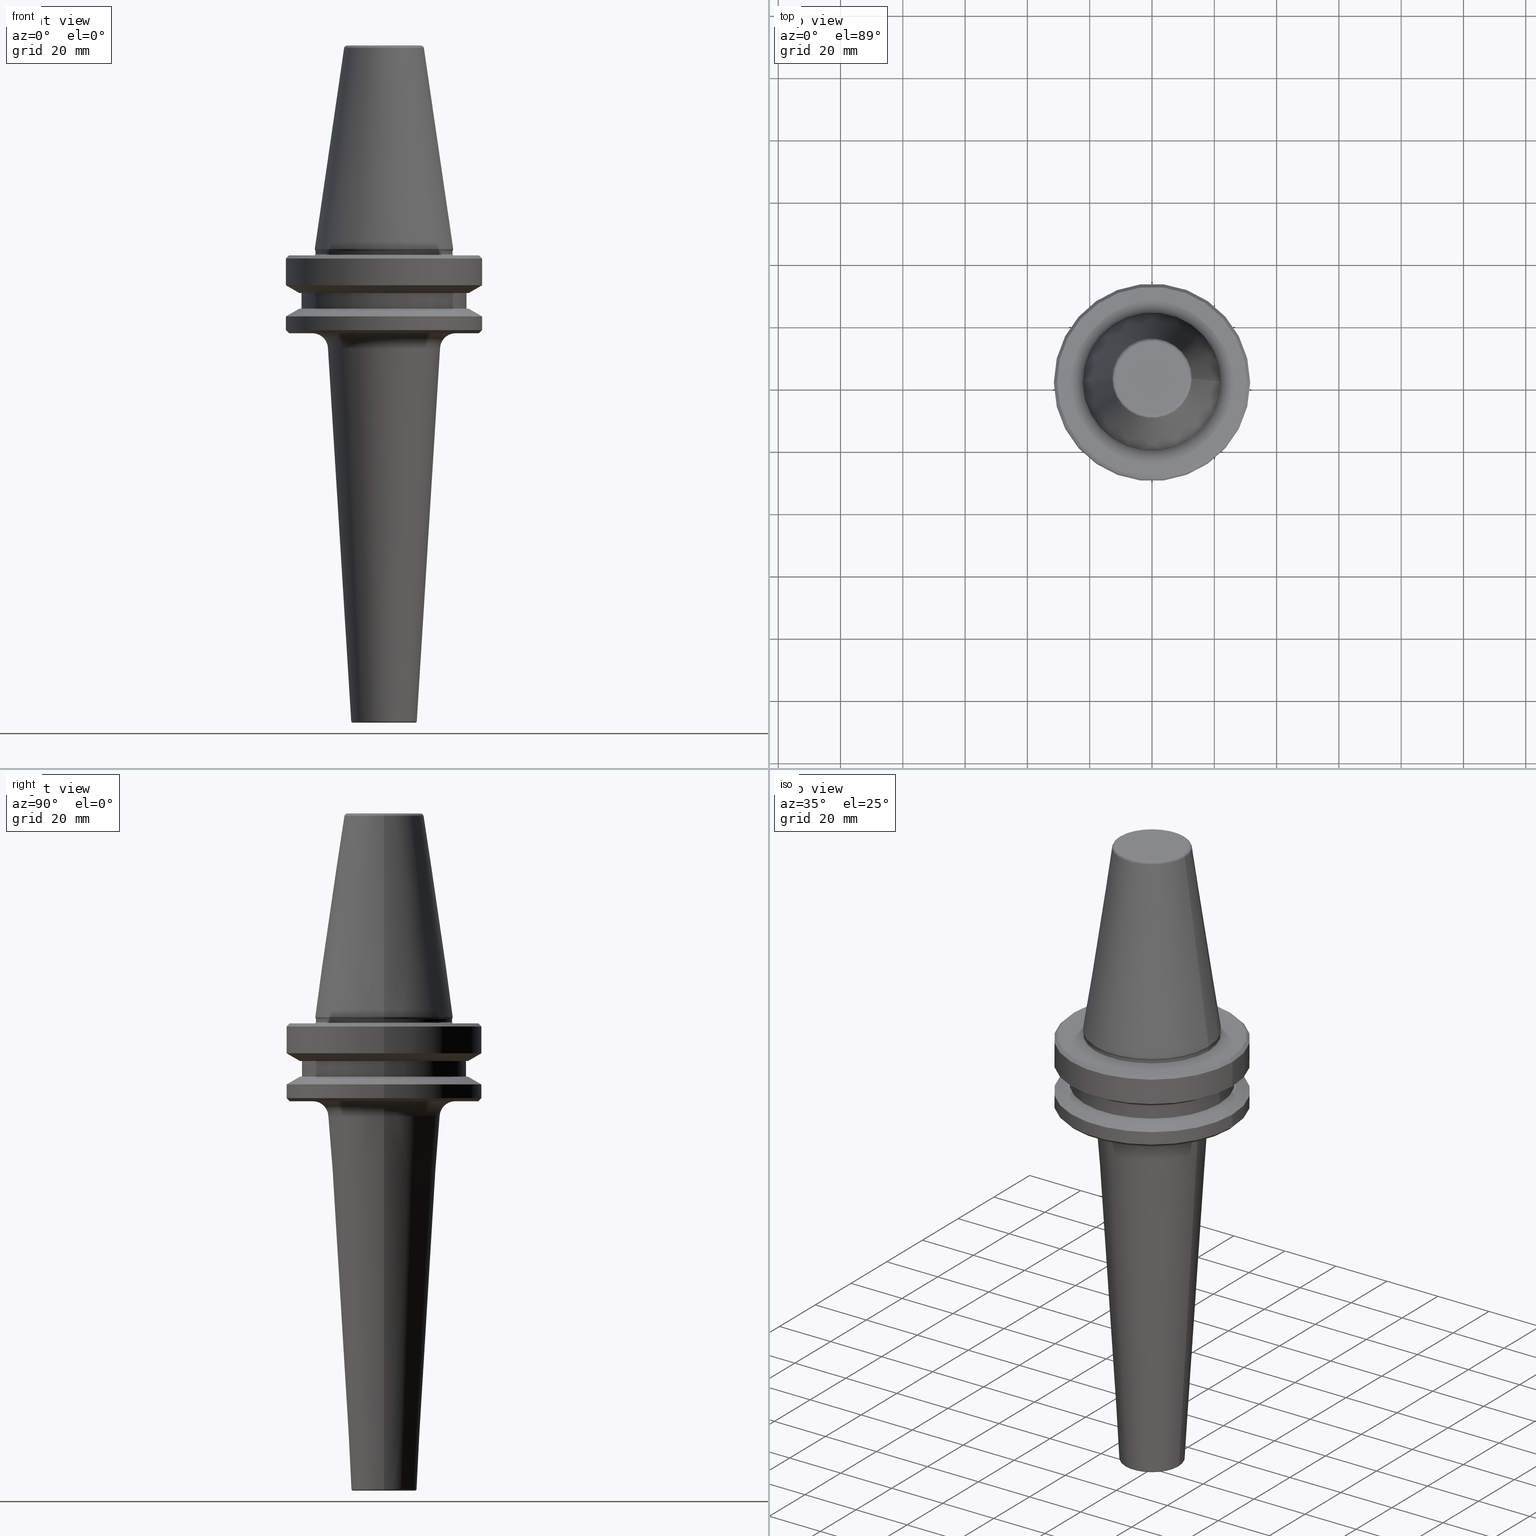
[diagram: canonical four-view strip — front | top / right | iso, engineering-drawing reading convention]
A machine part, canonical four-view strip (front | top / right | iso — engineering-drawing reading convention). The complete STEP part file that produces these views, byte-faithful:
ISO-10303-21;
HEADER;
FILE_DESCRIPTION (( 'STEP AP203' ),
    '1' );
FILE_NAME ('BT40 MCA12 125 AD+B-2.5G 25000 SL.STEP',
    '2019-05-24T10:17:07',
    ( '' ),
    ( '' ),
    'SwSTEP 2.0',
    'SolidWorks 2014',
    '' );
FILE_SCHEMA (( 'CONFIG_CONTROL_DESIGN' ));
ENDSEC;

DATA;
#1 = AXIS2_PLACEMENT_3D ( 'NONE', #152, #635, #426 ) ;
#2 = CYLINDRICAL_SURFACE ( 'NONE', #710, 26.50000000000019200 ) ;
#3 = DIRECTION ( 'NONE',  ( -0.7071067811865474600, 0.0000000000000000000, -0.7071067811865475700 ) ) ;
#4 = DIRECTION ( 'NONE',  ( -0.0000000000000000000, -0.0000000000000000000, 1.000000000000000000 ) ) ;
#5 = ORIENTED_EDGE ( 'NONE', *, *, #829, .T. ) ;
#6 = ORIENTED_EDGE ( 'NONE', *, *, #902, .T. ) ;
#7 = ADVANCED_FACE ( 'NONE', ( #1004 ), #2, .T. ) ;
#8 = ORIENTED_EDGE ( 'NONE', *, *, #721, .T. ) ;
#9 = CARTESIAN_POINT ( 'NONE',  ( 0.0000000000000000000, 0.0000000000000000000, -217.4000000000079600 ) ) ;
#10 = LOCAL_TIME ( 15, 47, 7.000000000000000000, #243 ) ;
#11 = ORIENTED_EDGE ( 'NONE', *, *, #987, .T. ) ;
#12 = DIRECTION ( 'NONE',  ( 0.0000000000000000000, 0.0000000000000000000, -1.000000000000000000 ) ) ;
#13 = ADVANCED_FACE ( 'NONE', ( #631, #139 ), #383, .F. ) ;
#14 = ADVANCED_FACE ( 'NONE', ( #650 ), #276, .T. ) ;
#15 = FACE_OUTER_BOUND ( 'NONE', #598, .T. ) ;
#16 = DIRECTION ( 'NONE',  ( -1.000000000000000000, 1.224646799147352700E-016, 0.0000000000000000000 ) ) ;
#17 = CARTESIAN_POINT ( 'NONE',  ( 0.0000000000000000000, 0.0000000000000000000, -68.40000000000046000 ) ) ;
#18 = EDGE_CURVE ( 'NONE', #167, #612, #36, .T. ) ;
#19 = CONICAL_SURFACE ( 'NONE', #195, 31.50000000000008500, 1.047197551196587000 ) ;
#20 = DIRECTION ( 'NONE',  ( 0.7071067811865487900, 0.0000000000000000000, 0.7071067811865463500 ) ) ;
#21 = CIRCLE ( 'NONE', #886, 31.50000000000008500 ) ;
#22 = EDGE_LOOP ( 'NONE', ( #1012, #904, #666, #1011 ) ) ;
#23 = PRODUCT_DEFINITION_FORMATION_WITH_SPECIFIED_SOURCE ( 'ANY', '', #332, .NOT_KNOWN. ) ;
#24 = ORIENTED_EDGE ( 'NONE', *, *, #394, .F. ) ;
#25 = AXIS2_PLACEMENT_3D ( 'NONE', #264, #785, #1002 ) ;
#26 = ORIENTED_EDGE ( 'NONE', *, *, #103, .F. ) ;
#27 = DIRECTION ( 'NONE',  ( -1.000000000000000000, 0.0000000000000000000, 0.0000000000000000000 ) ) ;
#28 = APPROVAL_PERSON_ORGANIZATION ( #877, #864, #868 ) ;
#29 = CALENDAR_DATE ( 2019, 24, 5 ) ;
#30 = CARTESIAN_POINT ( 'NONE',  ( 31.50000000000008500, 0.0000000000000000000, -68.40000000000046000 ) ) ;
#31 = PERSON_AND_ORGANIZATION ( #713, #273 ) ;
#32 = DIRECTION ( 'NONE',  ( 1.224646799147353200E-016, 1.000000000000000000, 0.0000000000000000000 ) ) ;
#33 = CARTESIAN_POINT ( 'NONE',  ( 0.0000000000000000000, 0.0000000000000000000, -97.40000000000800600 ) ) ;
#34 = EDGE_CURVE ( 'NONE', #414, #799, #470, .T. ) ;
#35 = AXIS2_PLACEMENT_3D ( 'NONE', #606, #382, #534 ) ;
#36 = CIRCLE ( 'NONE', #1040, 11.82266927716813000 ) ;
#37 = ORIENTED_EDGE ( 'NONE', *, *, #847, .T. ) ;
#38 = ORIENTED_EDGE ( 'NONE', *, *, #727, .F. ) ;
#39 = AXIS2_PLACEMENT_3D ( 'NONE', #359, #188, #595 ) ;
#40 = DIRECTION ( 'NONE',  ( -0.0000000000000000000, -0.0000000000000000000, 1.000000000000000000 ) ) ;
#41 = FACE_OUTER_BOUND ( 'NONE', #491, .T. ) ;
#42 = CIRCLE ( 'NONE', #714, 27.16962701892256100 ) ;
#43 = DIRECTION ( 'NONE',  ( 1.000000000000000000, 0.0000000000000000000, 0.0000000000000000000 ) ) ;
#44 = ORIENTED_EDGE ( 'NONE', *, *, #847, .F. ) ;
#45 = CARTESIAN_POINT ( 'NONE',  ( -22.00000000000002100, 2.724839128102860200E-015, -66.90000000000040400 ) ) ;
#46 = APPLICATION_CONTEXT ( 'configuration controlled 3d designs of mechanical parts and assemblies' ) ;
#47 = AXIS2_PLACEMENT_3D ( 'NONE', #1018, #413, #573 ) ;
#48 = VERTEX_POINT ( 'NONE', #406 ) ;
#49 = PERSON_AND_ORGANIZATION_ROLE ( 'design_supplier' ) ;
#50 = ORIENTED_EDGE ( 'NONE', *, *, #679, .T. ) ;
#51 = ORIENTED_EDGE ( 'NONE', *, *, #404, .F. ) ;
#52 = DIRECTION ( 'NONE',  ( -0.0000000000000000000, -0.0000000000000000000, 1.000000000000000000 ) ) ;
#53 = ORIENTED_EDGE ( 'NONE', *, *, #680, .T. ) ;
#54 = CARTESIAN_POINT ( 'NONE',  ( 0.0000000000000000000, 0.0000000000000000000, -66.08871321165987900 ) ) ;
#55 = VECTOR ( 'NONE', #617, 1000.000000000000000 ) ;
#56 = DATE_AND_TIME ( #301, #510 ) ;
#57 = CARTESIAN_POINT ( 'NONE',  ( 0.0000000000000000000, 0.0000000000000000000, -1.000000000000334000 ) ) ;
#58 = CARTESIAN_POINT ( 'NONE',  ( 0.0000000000000000000, 0.0000000000000000000, -66.08871321165987900 ) ) ;
#59 = ORIENTED_EDGE ( 'NONE', *, *, #282, .F. ) ;
#60 = EDGE_CURVE ( 'NONE', #1000, #95, #883, .T. ) ;
#61 = CARTESIAN_POINT ( 'NONE',  ( 0.0000000000000000000, 0.0000000000000000000, -92.40000000000800600 ) ) ;
#62 = AXIS2_PLACEMENT_3D ( 'NONE', #873, #948, #787 ) ;
#63 = DIRECTION ( 'NONE',  ( 1.000000000000000000, 0.0000000000000000000, 0.0000000000000000000 ) ) ;
#64 = ORIENTED_EDGE ( 'NONE', *, *, #329, .T. ) ;
#65 = ORIENTED_EDGE ( 'NONE', *, *, #186, .F. ) ;
#66 = ORIENTED_EDGE ( 'NONE', *, *, #282, .T. ) ;
#67 = DIRECTION ( 'NONE',  ( -0.0000000000000000000, -0.0000000000000000000, 1.000000000000000000 ) ) ;
#68 = DIRECTION ( 'NONE',  ( 0.0000000000000000000, 0.0000000000000000000, -1.000000000000000000 ) ) ;
#69 = LINE ( 'NONE', #239, #910 ) ;
#70 = PLANE ( 'NONE',  #955 ) ;
#71 = CIRCLE ( 'NONE', #604, 26.50000000000019200 ) ;
#72 = EDGE_CURVE ( 'NONE', #702, #837, #249, .T. ) ;
#73 = ORIENTED_EDGE ( 'NONE', *, *, #647, .F. ) ;
#74 = CARTESIAN_POINT ( 'NONE',  ( -31.50000000000008500, 3.857637417314172900E-015, -76.99985799368391800 ) ) ;
#75 = DIRECTION ( 'NONE',  ( -0.0000000000000000000, -0.0000000000000000000, 1.000000000000000000 ) ) ;
#76 = ORIENTED_EDGE ( 'NONE', *, *, #456, .T. ) ;
#77 = CIRCLE ( 'NONE', #874, 0.4000000000001502400 ) ;
#78 = APPROVAL ( #478, 'UNSPECIFIED' ) ;
#79 = CARTESIAN_POINT ( 'NONE',  ( 30.49999999999241900, 0.0000000000000000000, -92.40000000000803500 ) ) ;
#80 = DIRECTION ( 'NONE',  ( -1.000000000000000000, 1.224646799147354400E-016, 0.0000000000000000000 ) ) ;
#81 = VERTEX_POINT ( 'NONE', #30 ) ;
#82 = EDGE_CURVE ( 'NONE', #771, #252, #856, .T. ) ;
#83 = ORIENTED_EDGE ( 'NONE', *, *, #126, .F. ) ;
#84 = CARTESIAN_POINT ( 'NONE',  ( 0.0000000000000000000, 0.0000000000000000000, -67.40000000000034700 ) ) ;
#85 = CARTESIAN_POINT ( 'NONE',  ( 31.50000000000008500, 0.0000000000000000000, 6.357346922996331500 ) ) ;
#86 = ADVANCED_FACE ( 'NONE', ( #15 ), #616, .T. ) ;
#87 = CIRCLE ( 'NONE', #442, 11.82266927716813000 ) ;
#88 = CARTESIAN_POINT ( 'NONE',  ( 0.0000000000000000000, 0.0000000000000000000, -65.95190515433003500 ) ) ;
#89 = AXIS2_PLACEMENT_3D ( 'NONE', #815, #304, #568 ) ;
#90 = CARTESIAN_POINT ( 'NONE',  ( 22.99031303569582000, 0.0000000000000000000, -97.40000000000800600 ) ) ;
#91 = CARTESIAN_POINT ( 'NONE',  ( -11.82266927716813000, 1.508450817090336800E-015, -4.440892098500626200E-013 ) ) ;
#92 = AXIS2_PLACEMENT_3D ( 'NONE', #84, #817, #178 ) ;
#93 = ADVANCED_FACE ( 'NONE', ( #664 ), #451, .T. ) ;
#94 = AXIS2_PLACEMENT_3D ( 'NONE', #935, #866, #199 ) ;
#95 = VERTEX_POINT ( 'NONE', #355 ) ;
#96 = DIRECTION ( 'NONE',  ( 1.000000000000000000, 0.0000000000000000000, 0.0000000000000000000 ) ) ;
#97 = ADVANCED_FACE ( 'NONE', ( #428 ), #220, .F. ) ;
#98 = CIRCLE ( 'NONE', #334, 31.50000000000008500 ) ;
#99 = FACE_OUTER_BOUND ( 'NONE', #749, .T. ) ;
#100 = AXIS2_PLACEMENT_3D ( 'NONE', #981, #12, #448 ) ;
#101 = ORIENTED_EDGE ( 'NONE', *, *, #141, .T. ) ;
#102 = DIRECTION ( 'NONE',  ( 1.000000000000000000, 0.0000000000000000000, 0.0000000000000000000 ) ) ;
#103 = EDGE_CURVE ( 'NONE', #971, #378, #637, .T. ) ;
#104 = TOROIDAL_SURFACE ( 'NONE', #613, 22.40000000000019800, 0.4000000000001546800 ) ;
#105 = DIRECTION ( 'NONE',  ( 1.000000000000000000, 0.0000000000000000000, 0.0000000000000000000 ) ) ;
#106 = ORIENTED_EDGE ( 'NONE', *, *, #385, .T. ) ;
#107 = AXIS2_PLACEMENT_3D ( 'NONE', #416, #646, #982 ) ;
#108 = EDGE_LOOP ( 'NONE', ( #147, #66, #372, #932 ) ) ;
#109 = CARTESIAN_POINT ( 'NONE',  ( -26.50000000000019200, 3.245314017740509400E-015, -79.50000000000012800 ) ) ;
#110 = VERTEX_POINT ( 'NONE', #436 ) ;
#111 = FACE_OUTER_BOUND ( 'NONE', #209, .T. ) ;
#112 = CONICAL_SURFACE ( 'NONE', #286, 17.99999999999999600, 0.06225783109113229600 ) ;
#113 = CARTESIAN_POINT ( 'NONE',  ( 31.50000000000008500, 0.0000000000000000000, -87.00014200631733300 ) ) ;
#114 = EDGE_CURVE ( 'NONE', #234, #196, #834, .T. ) ;
#115 = CARTESIAN_POINT ( 'NONE',  ( 0.0000000000000000000, 0.0000000000000000000, 6.357346922996331500 ) ) ;
#116 = VERTEX_POINT ( 'NONE', #113 ) ;
#117 = AXIS2_PLACEMENT_3D ( 'NONE', #386, #1032, #353 ) ;
#118 = CARTESIAN_POINT ( 'NONE',  ( 0.0000000000000000000, 0.0000000000000000000, 6.357346922996331500 ) ) ;
#119 = EDGE_LOOP ( 'NONE', ( #553, #333, #673, #51 ) ) ;
#120 = ORIENTED_EDGE ( 'NONE', *, *, #114, .F. ) ;
#121 = LINE ( 'NONE', #321, #960 ) ;
#122 = FACE_BOUND ( 'NONE', #733, .T. ) ;
#123 = VERTEX_POINT ( 'NONE', #970 ) ;
#124 = AXIS2_PLACEMENT_3D ( 'NONE', #153, #1038, #215 ) ;
#125 = CARTESIAN_POINT ( 'NONE',  ( 0.0000000000000000000, 0.0000000000000000000, 6.357346922996331500 ) ) ;
#126 = EDGE_CURVE ( 'NONE', #837, #702, #798, .T. ) ;
#127 = CIRCLE ( 'NONE', #550, 0.9999999999999696900 ) ;
#128 = DIRECTION ( 'NONE',  ( 1.000000000000000000, 0.0000000000000000000, 0.0000000000000000000 ) ) ;
#129 = EDGE_LOOP ( 'NONE', ( #618, #452, #728, #691 ) ) ;
#130 = EDGE_LOOP ( 'NONE', ( #101, #572, #499, #522 ) ) ;
#131 = EDGE_LOOP ( 'NONE', ( #738, #792, #552, #140 ) ) ;
#132 = MECHANICAL_CONTEXT ( 'NONE', #46, 'mechanical' ) ;
#133 = CC_DESIGN_APPROVAL ( #78, ( #23 ) ) ;
#134 = CARTESIAN_POINT ( 'NONE',  ( 30.49999999999997200, 3.735172737399423600E-015, -67.40000000000034700 ) ) ;
#135 = CONICAL_SURFACE ( 'NONE', #293, 17.99999999999999600, 0.06225783109113229600 ) ;
#136 = PERSON_AND_ORGANIZATION_ROLE ( 'classification_officer' ) ;
#137 = EDGE_CURVE ( 'NONE', #607, #154, #1042, .T. ) ;
#138 = CONICAL_SURFACE ( 'NONE', #100, 12.81220206925736900, 0.1448138077623198300 ) ;
#139 = FACE_BOUND ( 'NONE', #949, .T. ) ;
#140 = ORIENTED_EDGE ( 'NONE', *, *, #297, .F. ) ;
#141 = EDGE_CURVE ( 'NONE', #957, #724, #1014, .T. ) ;
#142 = DIRECTION ( 'NONE',  ( -0.0000000000000000000, -0.0000000000000000000, 1.000000000000000000 ) ) ;
#143 = AXIS2_PLACEMENT_3D ( 'NONE', #963, #719, #1047 ) ;
#144 = LOCAL_TIME ( 15, 47, 7.000000000000000000, #388 ) ;
#145 = DIRECTION ( 'NONE',  ( 1.000000000000000000, 0.0000000000000000000, 0.0000000000000000000 ) ) ;
#146 = PLANE ( 'NONE',  #561 ) ;
#147 = ORIENTED_EDGE ( 'NONE', *, *, #114, .T. ) ;
#148 = CIRCLE ( 'NONE', #415, 10.52922992369848000 ) ;
#149 = CARTESIAN_POINT ( 'NONE',  ( 0.0000000000000000000, 0.0000000000000000000, -87.00014200631733300 ) ) ;
#150 = AXIS2_PLACEMENT_3D ( 'NONE', #852, #32, #16 ) ;
#151 = CIRCLE ( 'NONE', #1006, 30.49999999999997200 ) ;
#152 = CARTESIAN_POINT ( 'NONE',  ( 0.0000000000000000000, 0.0000000000000000000, -66.90000000000040400 ) ) ;
#153 = CARTESIAN_POINT ( 'NONE',  ( 0.0000000000000000000, 0.0000000000000000000, -76.99985799368391800 ) ) ;
#154 = VERTEX_POINT ( 'NONE', #420 ) ;
#155 = ORIENTED_EDGE ( 'NONE', *, *, #82, .T. ) ;
#156 = AXIS2_PLACEMENT_3D ( 'NONE', #305, #855, #393 ) ;
#157 = DIRECTION ( 'NONE',  ( 1.000000000000000000, 0.0000000000000000000, 0.0000000000000000000 ) ) ;
#158 = AXIS2_PLACEMENT_3D ( 'NONE', #1055, #461, #402 ) ;
#159 = AXIS2_PLACEMENT_3D ( 'NONE', #906, #694, #179 ) ;
#160 = CIRCLE ( 'NONE', #489, 27.16962701892256100 ) ;
#161 = CARTESIAN_POINT ( 'NONE',  ( 31.50000000000008500, 0.0000000000000000000, -91.40000000000037500 ) ) ;
#162 = EDGE_LOOP ( 'NONE', ( #59, #363, #401, #73 ) ) ;
#163 = EDGE_CURVE ( 'NONE', #322, #234, #398, .T. ) ;
#164 = DIRECTION ( 'NONE',  ( 1.000000000000000000, 0.0000000000000000000, 0.0000000000000000000 ) ) ;
#165 = AXIS2_PLACEMENT_3D ( 'NONE', #432, #712, #128 ) ;
#166 = DIRECTION ( 'NONE',  ( -1.000000000000000000, 0.0000000000000000000, -0.0000000000000000000 ) ) ;
#167 = VERTEX_POINT ( 'NONE', #703 ) ;
#168 = EDGE_LOOP ( 'NONE', ( #481, #589, #651, #602 ) ) ;
#169 = FACE_OUTER_BOUND ( 'NONE', #221, .T. ) ;
#170 = DIRECTION ( 'NONE',  ( 1.224646799147353200E-016, 1.000000000000000000, 0.0000000000000000000 ) ) ;
#171 = TOROIDAL_SURFACE ( 'NONE', #225, 22.99031303569582000, 5.000000000000000900 ) ;
#172 = DIRECTION ( 'NONE',  ( -0.0000000000000000000, -0.0000000000000000000, 1.000000000000000000 ) ) ;
#173 = EDGE_CURVE ( 'NONE', #896, #345, #160, .T. ) ;
#174 = EDGE_CURVE ( 'NONE', #205, #1027, #992, .T. ) ;
#175 = ADVANCED_FACE ( 'NONE', ( #594 ), #342, .T. ) ;
#176 = EDGE_CURVE ( 'NONE', #322, #548, #543, .T. ) ;
#177 = ORIENTED_EDGE ( 'NONE', *, *, #767, .T. ) ;
#178 = DIRECTION ( 'NONE',  ( -1.000000000000000000, 0.0000000000000000000, 0.0000000000000000000 ) ) ;
#179 = DIRECTION ( 'NONE',  ( 1.000000000000000000, 0.0000000000000000000, 0.0000000000000000000 ) ) ;
#180 = CARTESIAN_POINT ( 'NONE',  ( 22.40000000000019800, 0.0000000000000000000, -66.08871321165987900 ) ) ;
#181 = ORIENTED_EDGE ( 'NONE', *, *, #227, .F. ) ;
#182 = DIRECTION ( 'NONE',  ( 0.0000000000000000000, 0.0000000000000000000, -1.000000000000000000 ) ) ;
#183 = CARTESIAN_POINT ( 'NONE',  ( -31.50000000000008500, 3.857637417314172900E-015, 6.357346922996331500 ) ) ;
#184 = AXIS2_PLACEMENT_3D ( 'NONE', #832, #348, #895 ) ;
#185 = ADVANCED_FACE ( 'NONE', ( #747 ), #726, .T. ) ;
#186 = EDGE_CURVE ( 'NONE', #433, #799, #946, .T. ) ;
#187 = ORIENTED_EDGE ( 'NONE', *, *, #615, .T. ) ;
#188 = DIRECTION ( 'NONE',  ( -0.0000000000000000000, -0.0000000000000000000, 1.000000000000000000 ) ) ;
#189 = CALENDAR_DATE ( 2019, 24, 5 ) ;
#190 = ADVANCED_FACE ( 'NONE', ( #365 ), #104, .F. ) ;
#191 = CARTESIAN_POINT ( 'NONE',  ( 0.0000000000000000000, 0.0000000000000000000, -65.40000000000057400 ) ) ;
#192 = LINE ( 'NONE', #1008, #1009 ) ;
#193 = DIRECTION ( 'NONE',  ( 1.000000000000000000, 0.0000000000000000000, 0.0000000000000000000 ) ) ;
#194 = VECTOR ( 'NONE', #75, 1000.000000000000000 ) ;
#195 = AXIS2_PLACEMENT_3D ( 'NONE', #423, #68, #27 ) ;
#196 = VERTEX_POINT ( 'NONE', #487 ) ;
#197 = ORIENTED_EDGE ( 'NONE', *, *, #625, .F. ) ;
#198 = CARTESIAN_POINT ( 'NONE',  ( 0.0000000000000000000, 0.0000000000000000000, -65.40000000000057400 ) ) ;
#199 = DIRECTION ( 'NONE',  ( 1.000000000000000000, 0.0000000000000000000, 0.0000000000000000000 ) ) ;
#200 = EDGE_CURVE ( 'NONE', #123, #687, #966, .T. ) ;
#201 = CIRCLE ( 'NONE', #994, 22.99031303569582000 ) ;
#202 = CARTESIAN_POINT ( 'NONE',  ( 0.0000000000000000000, 0.0000000000000000000, -79.50000000000012800 ) ) ;
#203 = CONICAL_SURFACE ( 'NONE', #938, 22.22499999999993700, 0.3490658503994643600 ) ;
#204 = CC_DESIGN_PERSON_AND_ORGANIZATION_ASSIGNMENT ( #213, #546, ( #23 ) ) ;
#205 = VERTEX_POINT ( 'NONE', #869 ) ;
#206 = VERTEX_POINT ( 'NONE', #768 ) ;
#207 = EDGE_CURVE ( 'NONE', #154, #490, #885, .T. ) ;
#208 = AXIS2_PLACEMENT_3D ( 'NONE', #33, #257, #842 ) ;
#209 = EDGE_LOOP ( 'NONE', ( #1003, #278 ) ) ;
#210 = CARTESIAN_POINT ( 'NONE',  ( 22.49999999999996400, 0.0000000000000000000, -67.40000000000034700 ) ) ;
#211 = MANIFOLD_SOLID_BREP ( 'Revolve1', #255 ) ;
#212 = EDGE_CURVE ( 'NONE', #858, #346, #77, .T. ) ;
#213 = PERSON_AND_ORGANIZATION ( #713, #273 ) ;
#214 = DIRECTION ( 'NONE',  ( 1.000000000000000000, 0.0000000000000000000, 0.0000000000000000000 ) ) ;
#215 = DIRECTION ( 'NONE',  ( 1.000000000000000000, 0.0000000000000000000, 0.0000000000000000000 ) ) ;
#216 = AXIS2_PLACEMENT_3D ( 'NONE', #514, #40, #219 ) ;
#217 = DIRECTION ( 'NONE',  ( 1.000000000000000000, 0.0000000000000000000, 0.0000000000000000000 ) ) ;
#218 = EDGE_CURVE ( 'NONE', #837, #612, #127, .T. ) ;
#219 = DIRECTION ( 'NONE',  ( 1.000000000000000000, 0.0000000000000000000, 0.0000000000000000000 ) ) ;
#220 = TOROIDAL_SURFACE ( 'NONE', #1035, 22.49999999999996400, 0.4999999999999449300 ) ;
#221 = EDGE_LOOP ( 'NONE', ( #545, #634, #298, #1052 ) ) ;
#222 = DIRECTION ( 'NONE',  ( -0.0000000000000000000, -0.0000000000000000000, 1.000000000000000000 ) ) ;
#223 = EDGE_LOOP ( 'NONE', ( #697, #586, #395, #76 ) ) ;
#224 = ORIENTED_EDGE ( 'NONE', *, *, #137, .T. ) ;
#225 = AXIS2_PLACEMENT_3D ( 'NONE', #347, #893, #96 ) ;
#226 = CARTESIAN_POINT ( 'NONE',  ( 0.0000000000000000000, 0.0000000000000000000, -67.40000000000034700 ) ) ;
#227 = EDGE_CURVE ( 'NONE', #412, #346, #676, .T. ) ;
#228 = CARTESIAN_POINT ( 'NONE',  ( -22.40000000000019800, 2.743208830090095500E-015, -66.08871321165987900 ) ) ;
#229 = FACE_BOUND ( 'NONE', #921, .T. ) ;
#230 = DIRECTION ( 'NONE',  ( 1.000000000000000000, 0.0000000000000000000, 0.0000000000000000000 ) ) ;
#231 = CIRCLE ( 'NONE', #833, 5.000000000000000900 ) ;
#232 = APPLICATION_CONTEXT ( 'configuration controlled 3d designs of mechanical parts and assemblies' ) ;
#233 = EDGE_LOOP ( 'NONE', ( #26, #6, #1017, #922 ) ) ;
#234 = VERTEX_POINT ( 'NONE', #320 ) ;
#235 = EDGE_CURVE ( 'NONE', #607, #116, #590, .T. ) ;
#236 = APPROVAL_STATUS ( 'not_yet_approved' ) ;
#237 = ORIENTED_EDGE ( 'NONE', *, *, #1048, .F. ) ;
#238 = EDGE_CURVE ( 'NONE', #771, #81, #986, .T. ) ;
#239 = CARTESIAN_POINT ( 'NONE',  ( -31.50000000000008500, 3.857637417314172900E-015, -91.40000000000037500 ) ) ;
#240 = ORIENTED_EDGE ( 'NONE', *, *, #517, .T. ) ;
#241 = DIRECTION ( 'NONE',  ( 0.0000000000000000000, -0.0000000000000000000, 1.000000000000000000 ) ) ;
#242 = CONICAL_SURFACE ( 'NONE', #92, 30.49999999999997200, 0.7853981633974482800 ) ;
#243 = COORDINATED_UNIVERSAL_TIME_OFFSET ( 5, 30, .AHEAD. ) ;
#244 = DIRECTION ( 'NONE',  ( 1.000000000000000000, 0.0000000000000000000, 0.0000000000000000000 ) ) ;
#245 = AXIS2_PLACEMENT_3D ( 'NONE', #431, #373, #482 ) ;
#246 = PLANE ( 'NONE',  #281 ) ;
#247 = AXIS2_PLACEMENT_3D ( 'NONE', #88, #427, #193 ) ;
#248 = CARTESIAN_POINT ( 'NONE',  ( 17.99999999999999600, 0.0000000000000000000, -97.08891190032505800 ) ) ;
#249 = CIRCLE ( 'NONE', #840, 12.81220206925736900 ) ;
#250 = EDGE_CURVE ( 'NONE', #196, #234, #148, .T. ) ;
#251 = DIRECTION ( 'NONE',  ( -1.000000000000000000, 0.0000000000000000000, -0.0000000000000000000 ) ) ;
#252 = VERTEX_POINT ( 'NONE', #503 ) ;
#253 = DIRECTION ( 'NONE',  ( -0.0000000000000000000, -0.0000000000000000000, 1.000000000000000000 ) ) ;
#254 = CARTESIAN_POINT ( 'NONE',  ( 22.49999999999996400, 0.0000000000000000000, -66.90000000000040400 ) ) ;
#255 = CLOSED_SHELL ( 'NONE', ( #989, #352, #267, #979, #903, #587, #93, #97, #576, #830, #439, #7, #361, #908, #823, #983, #512, #583, #175, #275, #185, #740, #515, #13, #86, #735, #655, #449, #667, #14, #190, #897, #736, #816, #662, #357, #445, #508 ) ) ;
#256 = LINE ( 'NONE', #248, #670 ) ;
#257 = DIRECTION ( 'NONE',  ( -0.0000000000000000000, -0.0000000000000000000, 1.000000000000000000 ) ) ;
#258 = VECTOR ( 'NONE', #750, 1000.000000000000100 ) ;
#259 = DIRECTION ( 'NONE',  ( 1.000000000000000000, 0.0000000000000000000, 0.0000000000000000000 ) ) ;
#260 = CC_DESIGN_PERSON_AND_ORGANIZATION_ASSIGNMENT ( #1034, #49, ( #23 ) ) ;
#261 = DIRECTION ( 'NONE',  ( -0.0000000000000000000, -0.0000000000000000000, 1.000000000000000000 ) ) ;
#262 = CARTESIAN_POINT ( 'NONE',  ( 0.0000000000000000000, 0.0000000000000000000, -0.8556918111122247000 ) ) ;
#263 = ORIENTED_EDGE ( 'NONE', *, *, #1026, .T. ) ;
#264 = CARTESIAN_POINT ( 'NONE',  ( 0.0000000000000000000, 0.0000000000000000000, -67.40000000000034700 ) ) ;
#265 = ORIENTED_EDGE ( 'NONE', *, *, #930, .F. ) ;
#266 = CARTESIAN_POINT ( 'NONE',  ( 26.50000000000019200, 0.0000000000000000000, 6.357346922996331500 ) ) ;
#267 = ADVANCED_FACE ( 'NONE', ( #358 ), #793, .T. ) ;
#268 = FACE_OUTER_BOUND ( 'NONE', #223, .T. ) ;
#269 = LOCAL_TIME ( 15, 47, 7.000000000000000000, #484 ) ;
#270 = AXIS2_PLACEMENT_3D ( 'NONE', #486, #480, #952 ) ;
#271 = CARTESIAN_POINT ( 'NONE',  ( 0.0000000000000000000, 0.0000000000000000000, -91.40000000000037500 ) ) ;
#272 = DIRECTION ( 'NONE',  ( 1.000000000000000000, 0.0000000000000000000, 0.0000000000000000000 ) ) ;
#273 = ORGANIZATION ( 'UNSPECIFIED', 'UNSPECIFIED', '' ) ;
#274 = DIRECTION ( 'NONE',  ( -0.0000000000000000000, -0.0000000000000000000, 1.000000000000000000 ) ) ;
#275 = ADVANCED_FACE ( 'NONE', ( #741 ), #337, .T. ) ;
#276 = CYLINDRICAL_SURFACE ( 'NONE', #867, 22.00000000000002100 ) ;
#277 = CARTESIAN_POINT ( 'NONE',  ( 0.0000000000000000000, 0.0000000000000000000, -87.00014200631733300 ) ) ;
#278 = ORIENTED_EDGE ( 'NONE', *, *, #615, .F. ) ;
#279 = ORIENTED_EDGE ( 'NONE', *, *, #894, .T. ) ;
#280 = EDGE_LOOP ( 'NONE', ( #303, #53, #516, #181 ) ) ;
#281 = AXIS2_PLACEMENT_3D ( 'NONE', #794, #715, #251 ) ;
#282 = EDGE_CURVE ( 'NONE', #196, #396, #121, .T. ) ;
#283 = DIRECTION ( 'NONE',  ( -1.000000000000000000, 1.224646799147353500E-016, 0.0000000000000000000 ) ) ;
#284 = VERTEX_POINT ( 'NONE', #109 ) ;
#285 = CIRCLE ( 'NONE', #107, 0.9999999999999696900 ) ;
#286 = AXIS2_PLACEMENT_3D ( 'NONE', #663, #261, #513 ) ;
#287 = AXIS2_PLACEMENT_3D ( 'NONE', #54, #707, #853 ) ;
#288 = DIRECTION ( 'NONE',  ( 1.000000000000000000, 0.0000000000000000000, 0.0000000000000000000 ) ) ;
#289 = DIRECTION ( 'NONE',  ( 1.000000000000000000, 0.0000000000000000000, 0.0000000000000000000 ) ) ;
#290 = CYLINDRICAL_SURFACE ( 'NONE', #665, 31.50000000000008500 ) ;
#291 = EDGE_CURVE ( 'NONE', #536, #346, #937, .T. ) ;
#292 = EDGE_LOOP ( 'NONE', ( #773, #187, #775, #317 ) ) ;
#293 = AXIS2_PLACEMENT_3D ( 'NONE', #944, #611, #954 ) ;
#294 = CARTESIAN_POINT ( 'NONE',  ( 22.02412295168553100, 0.0000000000000000000, -65.95190515433003500 ) ) ;
#295 = DIRECTION ( 'NONE',  ( -0.0000000000000000000, -0.0000000000000000000, 1.000000000000000000 ) ) ;
#296 = AXIS2_PLACEMENT_3D ( 'NONE', #57, #326, #706 ) ;
#297 = EDGE_CURVE ( 'NONE', #837, #1027, #563, .T. ) ;
#298 = ORIENTED_EDGE ( 'NONE', *, *, #291, .T. ) ;
#299 = FACE_OUTER_BOUND ( 'NONE', #898, .T. ) ;
#300 = DIRECTION ( 'NONE',  ( -0.0000000000000000000, -0.0000000000000000000, 1.000000000000000000 ) ) ;
#301 = CALENDAR_DATE ( 2019, 24, 5 ) ;
#302 = AXIS2_PLACEMENT_3D ( 'NONE', #444, #314, #557 ) ;
#303 = ORIENTED_EDGE ( 'NONE', *, *, #746, .T. ) ;
#304 = DIRECTION ( 'NONE',  ( -0.0000000000000000000, -0.0000000000000000000, 1.000000000000000000 ) ) ;
#305 = CARTESIAN_POINT ( 'NONE',  ( 0.0000000000000000000, 0.0000000000000000000, -97.08891190032505800 ) ) ;
#306 = CIRCLE ( 'NONE', #124, 31.50000000000008500 ) ;
#307 = DIRECTION ( 'NONE',  ( 0.3420201433262311000, 0.0000000000000000000, 0.9396926207857037000 ) ) ;
#308 = LINE ( 'NONE', #915, #258 ) ;
#309 = ORIENTED_EDGE ( 'NONE', *, *, #72, .T. ) ;
#310 = DIRECTION ( 'NONE',  ( -0.0000000000000000000, -0.0000000000000000000, 1.000000000000000000 ) ) ;
#311 = ORIENTED_EDGE ( 'NONE', *, *, #447, .F. ) ;
#312 = DIRECTION ( 'NONE',  ( -1.000000000000000000, 1.224646799147357600E-016, 0.0000000000000000000 ) ) ;
#313 = EDGE_CURVE ( 'NONE', #81, #378, #98, .T. ) ;
#314 = DIRECTION ( 'NONE',  ( -0.0000000000000000000, -0.0000000000000000000, 1.000000000000000000 ) ) ;
#315 = VECTOR ( 'NONE', #1039, 1000.000000000000100 ) ;
#316 = APPROVAL_STATUS ( 'not_yet_approved' ) ;
#317 = ORIENTED_EDGE ( 'NONE', *, *, #532, .F. ) ;
#318 = ORIENTED_EDGE ( 'NONE', *, *, #173, .T. ) ;
#319 = SECURITY_CLASSIFICATION ( '', '', #628 ) ;
#320 = CARTESIAN_POINT ( 'NONE',  ( 10.52922992369847300, 0.0000000000000000000, -216.9311088099765900 ) ) ;
#321 = CARTESIAN_POINT ( 'NONE',  ( -17.99999999999999600, 2.204364238465235000E-015, -97.08891190032505800 ) ) ;
#322 = VERTEX_POINT ( 'NONE', #574 ) ;
#323 = ORIENTED_EDGE ( 'NONE', *, *, #176, .F. ) ;
#324 = CONICAL_SURFACE ( 'NONE', #25, 30.49999999999997200, 0.7853981633974482800 ) ;
#325 = CARTESIAN_POINT ( 'NONE',  ( 0.0000000000000000000, 0.0000000000000000000, -216.9311088099765900 ) ) ;
#326 = DIRECTION ( 'NONE',  ( -0.0000000000000000000, -0.0000000000000000000, 1.000000000000000000 ) ) ;
#327 = CARTESIAN_POINT ( 'NONE',  ( 0.0000000000000000000, 0.0000000000000000000, -216.9000000000083000 ) ) ;
#328 = EDGE_CURVE ( 'NONE', #724, #154, #69, .T. ) ;
#329 = EDGE_CURVE ( 'NONE', #858, #205, #518, .T. ) ;
#330 = DIRECTION ( 'NONE',  ( 1.000000000000000000, 0.0000000000000000000, 0.0000000000000000000 ) ) ;
#331 = DIRECTION ( 'NONE',  ( -1.000000000000000000, 1.224646799147353000E-016, 0.0000000000000000000 ) ) ;
#332 = PRODUCT ( 'BT40 MCA12 125 AD+B-2.5G 25000 SL', 'BT40 MCA12 125 AD+B-2.5G 25000 SL', '', ( #132 ) ) ;
#333 = ORIENTED_EDGE ( 'NONE', *, *, #930, .T. ) ;
#334 = AXIS2_PLACEMENT_3D ( 'NONE', #344, #939, #1022 ) ;
#335 = CARTESIAN_POINT ( 'NONE',  ( 0.0000000000000000000, 0.0000000000000000000, -97.08891190032505800 ) ) ;
#336 = DIRECTION ( 'NONE',  ( -0.0000000000000000000, -0.0000000000000000000, 1.000000000000000000 ) ) ;
#337 = CYLINDRICAL_SURFACE ( 'NONE', #270, 31.50000000000008500 ) ;
#338 = CIRCLE ( 'NONE', #789, 5.000000000000004400 ) ;
#339 = AXIS2_PLACEMENT_3D ( 'NONE', #689, #222, #766 ) ;
#340 = DIRECTION ( 'NONE',  ( -0.0000000000000000000, -0.0000000000000000000, 1.000000000000000000 ) ) ;
#341 = DIRECTION ( 'NONE',  ( -0.0000000000000000000, -0.0000000000000000000, 1.000000000000000000 ) ) ;
#342 = CONICAL_SURFACE ( 'NONE', #644, 31.50000000000008500, 0.7853981633974500600 ) ;
#343 = DIRECTION ( 'NONE',  ( -0.8660254037844332700, 0.0000000000000000000, -0.5000000000000093300 ) ) ;
#344 = CARTESIAN_POINT ( 'NONE',  ( 0.0000000000000000000, 0.0000000000000000000, -68.40000000000046000 ) ) ;
#345 = VERTEX_POINT ( 'NONE', #700 ) ;
#346 = VERTEX_POINT ( 'NONE', #621 ) ;
#347 = CARTESIAN_POINT ( 'NONE',  ( 0.0000000000000000000, 0.0000000000000000000, -97.40000000000800600 ) ) ;
#348 = DIRECTION ( 'NONE',  ( -0.0000000000000000000, -0.0000000000000000000, 1.000000000000000000 ) ) ;
#349 = ORIENTED_EDGE ( 'NONE', *, *, #610, .F. ) ;
#350 = FACE_OUTER_BOUND ( 'NONE', #929, .T. ) ;
#351 = CIRCLE ( 'NONE', #339, 26.50000000000019200 ) ;
#352 = ADVANCED_FACE ( 'NONE', ( #537 ), #495, .T. ) ;
#353 = DIRECTION ( 'NONE',  ( 1.000000000000000000, 0.0000000000000000000, 0.0000000000000000000 ) ) ;
#354 = DIRECTION ( 'NONE',  ( -0.0000000000000000000, -0.0000000000000000000, 1.000000000000000000 ) ) ;
#355 = CARTESIAN_POINT ( 'NONE',  ( 22.99031303569582000, 0.0000000000000000000, -92.40000000000800600 ) ) ;
#356 = DIRECTION ( 'NONE',  ( -0.1443081888881795900, 0.0000000000000000000, -0.9895327920891826600 ) ) ;
#357 = ADVANCED_FACE ( 'NONE', ( #41 ), #425, .T. ) ;
#358 = FACE_OUTER_BOUND ( 'NONE', #429, .T. ) ;
#359 = CARTESIAN_POINT ( 'NONE',  ( 0.0000000000000000000, 0.0000000000000000000, 6.357346922996331500 ) ) ;
#360 = DIRECTION ( 'NONE',  ( 1.000000000000000000, 0.0000000000000000000, 0.0000000000000000000 ) ) ;
#361 = ADVANCED_FACE ( 'NONE', ( #692 ), #19, .T. ) ;
#362 = CIRCLE ( 'NONE', #755, 22.00000000000002100 ) ;
#363 = ORIENTED_EDGE ( 'NONE', *, *, #250, .T. ) ;
#364 = CARTESIAN_POINT ( 'NONE',  ( -22.99031303569582000, 2.815501327056055800E-015, -97.40000000000800600 ) ) ;
#365 = FACE_OUTER_BOUND ( 'NONE', #571, .T. ) ;
#366 = CARTESIAN_POINT ( 'NONE',  ( 0.0000000000000000000, 0.0000000000000000000, -84.50000000000068200 ) ) ;
#367 = DIRECTION ( 'NONE',  ( -0.0000000000000000000, -0.0000000000000000000, 1.000000000000000000 ) ) ;
#368 = EDGE_CURVE ( 'NONE', #234, #206, #256, .T. ) ;
#369 = ORIENTED_EDGE ( 'NONE', *, *, #207, .F. ) ;
#370 = ORIENTED_EDGE ( 'NONE', *, *, #759, .F. ) ;
#371 = DIRECTION ( 'NONE',  ( 1.000000000000000000, 0.0000000000000000000, 0.0000000000000000000 ) ) ;
#372 = ORIENTED_EDGE ( 'NONE', *, *, #987, .F. ) ;
#373 = DIRECTION ( 'NONE',  ( -0.0000000000000000000, -0.0000000000000000000, 1.000000000000000000 ) ) ;
#374 = CIRCLE ( 'NONE', #245, 22.02412295168554100 ) ;
#375 = CC_DESIGN_PERSON_AND_ORGANIZATION_ASSIGNMENT ( #825, #136, ( #319 ) ) ;
#376 = DIRECTION ( 'NONE',  ( 1.000000000000000000, 0.0000000000000000000, 0.0000000000000000000 ) ) ;
#377 = FACE_OUTER_BOUND ( 'NONE', #108, .T. ) ;
#378 = VERTEX_POINT ( 'NONE', #797 ) ;
#379 = EDGE_CURVE ( 'NONE', #687, #971, #306, .T. ) ;
#380 = DIRECTION ( 'NONE',  ( 0.0000000000000000000, 0.0000000000000000000, -1.000000000000000000 ) ) ;
#381 = ORIENTED_EDGE ( 'NONE', *, *, #836, .T. ) ;
#382 = DIRECTION ( 'NONE',  ( -0.0000000000000000000, -0.0000000000000000000, 1.000000000000000000 ) ) ;
#383 = PLANE ( 'NONE',  #984 ) ;
#384 = ORIENTED_EDGE ( 'NONE', *, *, #417, .T. ) ;
#385 = EDGE_CURVE ( 'NONE', #702, #167, #285, .T. ) ;
#386 = CARTESIAN_POINT ( 'NONE',  ( 0.0000000000000000000, 0.0000000000000000000, 6.357346922996331500 ) ) ;
#387 = CARTESIAN_POINT ( 'NONE',  ( -30.49999999999241900, 3.796405077356336000E-015, -92.40000000000803500 ) ) ;
#388 = COORDINATED_UNIVERSAL_TIME_OFFSET ( 5, 30, .AHEAD. ) ;
#389 = EDGE_LOOP ( 'NONE', ( #369, #528, #892, #669 ) ) ;
#390 = VECTOR ( 'NONE', #391, 1000.000000000000000 ) ;
#391 = DIRECTION ( 'NONE',  ( -0.0000000000000000000, -0.0000000000000000000, 1.000000000000000000 ) ) ;
#392 = FACE_OUTER_BOUND ( 'NONE', #505, .T. ) ;
#393 = DIRECTION ( 'NONE',  ( 1.000000000000000000, 0.0000000000000000000, 0.0000000000000000000 ) ) ;
#394 = EDGE_CURVE ( 'NONE', #414, #412, #474, .T. ) ;
#395 = ORIENTED_EDGE ( 'NONE', *, *, #759, .T. ) ;
#396 = VERTEX_POINT ( 'NONE', #581 ) ;
#397 = CARTESIAN_POINT ( 'NONE',  ( 0.0000000000000000000, 0.0000000000000000000, -66.08871321165987900 ) ) ;
#398 = CIRCLE ( 'NONE', #143, 0.4999999999996951300 ) ;
#399 = AXIS2_PLACEMENT_3D ( 'NONE', #397, #941, #473 ) ;
#400 = DIRECTION ( 'NONE',  ( 1.000000000000000000, 0.0000000000000000000, 0.0000000000000000000 ) ) ;
#401 = ORIENTED_EDGE ( 'NONE', *, *, #368, .T. ) ;
#402 = DIRECTION ( 'NONE',  ( -1.000000000000000000, 0.0000000000000000000, -0.0000000000000000000 ) ) ;
#403 = ORIENTED_EDGE ( 'NONE', *, *, #974, .F. ) ;
#404 = EDGE_CURVE ( 'NONE', #110, #48, #861, .T. ) ;
#405 =( NAMED_UNIT ( * ) PLANE_ANGLE_UNIT ( ) SI_UNIT ( $, .RADIAN. ) );
#406 = CARTESIAN_POINT ( 'NONE',  ( 26.50000000000019200, 0.0000000000000000000, -79.50000000000012800 ) ) ;
#407 = ORIENTED_EDGE ( 'NONE', *, *, #531, .T. ) ;
#408 = CIRCLE ( 'NONE', #421, 31.50000000000008500 ) ;
#409 = PERSON_AND_ORGANIZATION_ROLE ( 'creator' ) ;
#410 = FACE_OUTER_BOUND ( 'NONE', #131, .T. ) ;
#411 = ORIENTED_EDGE ( 'NONE', *, *, #297, .T. ) ;
#412 = VERTEX_POINT ( 'NONE', #962 ) ;
#413 = DIRECTION ( 'NONE',  ( -0.0000000000000000000, -0.0000000000000000000, 1.000000000000000000 ) ) ;
#414 = VERTEX_POINT ( 'NONE', #45 ) ;
#415 = AXIS2_PLACEMENT_3D ( 'NONE', #325, #1030, #630 ) ;
#416 = CARTESIAN_POINT ( 'NONE',  ( 11.82266927716813000, 0.0000000000000000000, -1.000000000000334000 ) ) ;
#417 = EDGE_CURVE ( 'NONE', #799, #433, #888, .T. ) ;
#418 = LOCAL_TIME ( 15, 47, 7.000000000000000000, #609 ) ;
#419 = CARTESIAN_POINT ( 'NONE',  ( 31.50000000000008500, 3.857637417314172900E-015, -87.00014200631733300 ) ) ;
#420 = CARTESIAN_POINT ( 'NONE',  ( -31.50000000000008500, 3.857637417314172900E-015, -91.40000000000037500 ) ) ;
#421 = AXIS2_PLACEMENT_3D ( 'NONE', #149, #659, #640 ) ;
#422 = FACE_OUTER_BOUND ( 'NONE', #233, .T. ) ;
#423 = CARTESIAN_POINT ( 'NONE',  ( 0.0000000000000000000, 0.0000000000000000000, -87.00014200631733300 ) ) ;
#424 = ORIENTED_EDGE ( 'NONE', *, *, #34, .T. ) ;
#425 = PLANE ( 'NONE',  #158 ) ;
#426 = DIRECTION ( 'NONE',  ( 1.000000000000000000, 0.0000000000000000000, 0.0000000000000000000 ) ) ;
#427 = DIRECTION ( 'NONE',  ( -0.0000000000000000000, -0.0000000000000000000, 1.000000000000000000 ) ) ;
#428 = FACE_OUTER_BOUND ( 'NONE', #764, .T. ) ;
#429 = EDGE_LOOP ( 'NONE', ( #309, #851, #466, #919 ) ) ;
#430 = CARTESIAN_POINT ( 'NONE',  ( 12.81220206925736900, 2.145409868259749100E-015, -0.8556918111122247000 ) ) ;
#431 = CARTESIAN_POINT ( 'NONE',  ( 0.0000000000000000000, 0.0000000000000000000, -65.95190515433003500 ) ) ;
#432 = CARTESIAN_POINT ( 'NONE',  ( 0.0000000000000000000, 0.0000000000000000000, -84.50000000000068200 ) ) ;
#433 = VERTEX_POINT ( 'NONE', #210 ) ;
#434 = TOROIDAL_SURFACE ( 'NONE', #814, 10.03019862012920200, 0.4999999999996833100 ) ;
#435 = DIRECTION ( 'NONE',  ( 1.000000000000000000, 0.0000000000000000000, 0.0000000000000000000 ) ) ;
#436 = CARTESIAN_POINT ( 'NONE',  ( 26.50000000000019200, 0.0000000000000000000, -84.50000000000068200 ) ) ;
#437 = LINE ( 'NONE', #831, #1023 ) ;
#438 = CC_DESIGN_DATE_AND_TIME_ASSIGNMENT ( #1007, #705, ( #319 ) ) ;
#439 = ADVANCED_FACE ( 'NONE', ( #1050 ), #1020, .T. ) ;
#440 = DIRECTION ( 'NONE',  ( 1.000000000000000000, 0.0000000000000000000, 0.0000000000000000000 ) ) ;
#441 = DIRECTION ( 'NONE',  ( -0.3420201433262311000, 4.188538737683878900E-017, 0.9396926207857037000 ) ) ;
#442 = AXIS2_PLACEMENT_3D ( 'NONE', #882, #811, #965 ) ;
#443 = DIRECTION ( 'NONE',  ( -0.0000000000000000000, -0.0000000000000000000, 1.000000000000000000 ) ) ;
#444 = CARTESIAN_POINT ( 'NONE',  ( 0.0000000000000000000, 0.0000000000000000000, -91.40000000000037500 ) ) ;
#445 = ADVANCED_FACE ( 'NONE', ( #839 ), #434, .T. ) ;
#446 = APPROVAL_DATE_TIME ( #633, #78 ) ;
#447 = EDGE_CURVE ( 'NONE', #95, #1000, #201, .T. ) ;
#448 = DIRECTION ( 'NONE',  ( -1.000000000000000000, 0.0000000000000000000, 0.0000000000000000000 ) ) ;
#449 = ADVANCED_FACE ( 'NONE', ( #229, #810 ), #146, .F. ) ;
#450 = AXIS2_PLACEMENT_3D ( 'NONE', #254, #800, #648 ) ;
#451 = CYLINDRICAL_SURFACE ( 'NONE', #917, 22.00000000000002100 ) ;
#452 = ORIENTED_EDGE ( 'NONE', *, *, #103, .T. ) ;
#453 = AXIS2_PLACEMENT_3D ( 'NONE', #228, #772, #312 ) ;
#454 = ORIENTED_EDGE ( 'NONE', *, *, #212, .T. ) ;
#455 = VECTOR ( 'NONE', #731, 1000.000000000000000 ) ;
#456 = EDGE_CURVE ( 'NONE', #378, #81, #622, .T. ) ;
#457 = AXIS2_PLACEMENT_3D ( 'NONE', #271, #642, #969 ) ;
#458 = CIRCLE ( 'NONE', #990, 22.22499999999993700 ) ;
#459 = CARTESIAN_POINT ( 'NONE',  ( 0.0000000000000000000, 0.0000000000000000000, -79.50000000000012800 ) ) ;
#460 = ORIENTED_EDGE ( 'NONE', *, *, #174, .T. ) ;
#461 = DIRECTION ( 'NONE',  ( 0.0000000000000000000, 0.0000000000000000000, -1.000000000000000000 ) ) ;
#462 = ORIENTED_EDGE ( 'NONE', *, *, #1041, .T. ) ;
#463 = CARTESIAN_POINT ( 'NONE',  ( -22.49999999999996400, 2.755455298081540400E-015, -67.40000000000034700 ) ) ;
#464 = CIRCLE ( 'NONE', #450, 0.4999999999999449300 ) ;
#465 = APPROVAL_PERSON_ORGANIZATION ( #658, #78, #1024 ) ;
#466 = ORIENTED_EDGE ( 'NONE', *, *, #18, .F. ) ;
#467 = AXIS2_PLACEMENT_3D ( 'NONE', #854, #367, #804 ) ;
#468 = DIRECTION ( 'NONE',  ( 0.8660254037844332700, 1.060575238724900300E-016, -0.5000000000000093300 ) ) ;
#469 = DIRECTION ( 'NONE',  ( -0.0000000000000000000, -0.0000000000000000000, 1.000000000000000000 ) ) ;
#470 = CIRCLE ( 'NONE', #786, 0.4999999999999449300 ) ;
#471 = CARTESIAN_POINT ( 'NONE',  ( 0.0000000000000000000, 0.0000000000000000000, -79.50000000000012800 ) ) ;
#472 = CARTESIAN_POINT ( 'NONE',  ( 0.0000000000000000000, 0.0000000000000000000, -67.40000000000034700 ) ) ;
#473 = DIRECTION ( 'NONE',  ( 1.000000000000000000, 0.0000000000000000000, 0.0000000000000000000 ) ) ;
#474 = CIRCLE ( 'NONE', #94, 22.00000000000002100 ) ;
#475 = DIRECTION ( 'NONE',  ( -0.7071067811865487900, 8.659560562354948900E-017, 0.7071067811865463500 ) ) ;
#476 = FACE_OUTER_BOUND ( 'NONE', #995, .T. ) ;
#477 = CARTESIAN_POINT ( 'NONE',  ( 0.0000000000000000000, 0.0000000000000000000, -84.50000000000068200 ) ) ;
#478 = APPROVAL_STATUS ( 'not_yet_approved' ) ;
#479 = APPROVAL ( #236, 'UNSPECIFIED' ) ;
#480 = DIRECTION ( 'NONE',  ( -0.0000000000000000000, -0.0000000000000000000, 1.000000000000000000 ) ) ;
#481 = ORIENTED_EDGE ( 'NONE', *, *, #173, .F. ) ;
#482 = DIRECTION ( 'NONE',  ( 1.000000000000000000, 0.0000000000000000000, 0.0000000000000000000 ) ) ;
#483 = VECTOR ( 'NONE', #340, 1000.000000000000000 ) ;
#484 = COORDINATED_UNIVERSAL_TIME_OFFSET ( 5, 30, .AHEAD. ) ;
#485 = SHAPE_DEFINITION_REPRESENTATION ( #1005, #951 ) ;
#486 = CARTESIAN_POINT ( 'NONE',  ( 0.0000000000000000000, 0.0000000000000000000, 6.357346922996331500 ) ) ;
#487 = CARTESIAN_POINT ( 'NONE',  ( -10.52922992369847300, 1.289458772354386800E-015, -216.9311088099765900 ) ) ;
#488 = DIRECTION ( 'NONE',  ( -0.0000000000000000000, -0.0000000000000000000, 1.000000000000000000 ) ) ;
#489 = AXIS2_PLACEMENT_3D ( 'NONE', #477, #253, #923 ) ;
#490 = VERTEX_POINT ( 'NONE', #776 ) ;
#491 = EDGE_LOOP ( 'NONE', ( #323, #1001 ) ) ;
#492 = DIRECTION ( 'NONE',  ( -0.0000000000000000000, -0.0000000000000000000, 1.000000000000000000 ) ) ;
#493 = ORIENTED_EDGE ( 'NONE', *, *, #829, .F. ) ;
#494 = AXIS2_PLACEMENT_3D ( 'NONE', #603, #300, #376 ) ;
#495 = TOROIDAL_SURFACE ( 'NONE', #216, 10.03019862012920200, 0.4999999999996833100 ) ;
#496 = CONICAL_SURFACE ( 'NONE', #457, 31.50000000000008500, 0.7853981633974500600 ) ;
#497 =( GEOMETRIC_REPRESENTATION_CONTEXT ( 3 ) GLOBAL_UNCERTAINTY_ASSIGNED_CONTEXT ( ( #953 ) ) GLOBAL_UNIT_ASSIGNED_CONTEXT ( ( #862, #405, #945 ) ) REPRESENTATION_CONTEXT ( 'NONE', 'WORKASPACE' ) );
#498 = DIRECTION ( 'NONE',  ( 0.0000000000000000000, -0.0000000000000000000, 1.000000000000000000 ) ) ;
#499 = ORIENTED_EDGE ( 'NONE', *, *, #137, .F. ) ;
#500 = EDGE_CURVE ( 'NONE', #490, #116, #408, .T. ) ;
#501 = AXIS2_PLACEMENT_3D ( 'NONE', #17, #743, #360 ) ;
#502 = EDGE_LOOP ( 'NONE', ( #843, #318 ) ) ;
#503 = CARTESIAN_POINT ( 'NONE',  ( -30.49999999999997200, 0.0000000000000000000, -67.40000000000034700 ) ) ;
#504 = EDGE_LOOP ( 'NONE', ( #547, #865, #1033, #745 ) ) ;
#505 = EDGE_LOOP ( 'NONE', ( #197, #83, #411, #533 ) ) ;
#506 = CARTESIAN_POINT ( 'NONE',  ( 0.0000000000000000000, 0.0000000000000000000, -84.50000000000068200 ) ) ;
#507 = CARTESIAN_POINT ( 'NONE',  ( 0.0000000000000000000, 0.0000000000000000000, -217.4000000000079600 ) ) ;
#508 = ADVANCED_FACE ( 'NONE', ( #599 ), #135, .T. ) ;
#509 = LINE ( 'NONE', #859, #55 ) ;
#510 = LOCAL_TIME ( 15, 47, 7.000000000000000000, #770 ) ;
#511 = DIRECTION ( 'NONE',  ( 0.0000000000000000000, -1.000000000000000000, 0.0000000000000000000 ) ) ;
#512 = ADVANCED_FACE ( 'NONE', ( #641 ), #575, .F. ) ;
#513 = DIRECTION ( 'NONE',  ( 1.000000000000000000, 0.0000000000000000000, 0.0000000000000000000 ) ) ;
#514 = CARTESIAN_POINT ( 'NONE',  ( 0.0000000000000000000, 0.0000000000000000000, -216.9000000000083000 ) ) ;
#515 = ADVANCED_FACE ( 'NONE', ( #996 ), #754, .T. ) ;
#516 = ORIENTED_EDGE ( 'NONE', *, *, #1026, .F. ) ;
#517 = EDGE_CURVE ( 'NONE', #783, #110, #973, .T. ) ;
#518 = CIRCLE ( 'NONE', #247, 22.02412295168554100 ) ;
#519 = AXIS2_PLACEMENT_3D ( 'NONE', #459, #918, #371 ) ;
#520 = AXIS2_PLACEMENT_3D ( 'NONE', #560, #542, #871 ) ;
#521 = LINE ( 'NONE', #597, #891 ) ;
#522 = ORIENTED_EDGE ( 'NONE', *, *, #879, .F. ) ;
#523 = CARTESIAN_POINT ( 'NONE',  ( 27.16962701892256100, 3.592478546794633900E-015, -84.50000000000068200 ) ) ;
#524 = LINE ( 'NONE', #889, #483 ) ;
#525 = ORIENTED_EDGE ( 'NONE', *, *, #238, .T. ) ;
#526 = CARTESIAN_POINT ( 'NONE',  ( -12.81220206925736900, 0.0000000000000000000, -0.8556918111122247000 ) ) ;
#527 = CC_DESIGN_APPROVAL ( #479, ( #319 ) ) ;
#528 = ORIENTED_EDGE ( 'NONE', *, *, #532, .T. ) ;
#529 = CIRCLE ( 'NONE', #35, 22.22499999999993700 ) ;
#530 = CARTESIAN_POINT ( 'NONE',  ( 0.0000000000000000000, 0.0000000000000000000, 6.357346922996331500 ) ) ;
#531 = EDGE_CURVE ( 'NONE', #205, #858, #374, .T. ) ;
#532 = EDGE_CURVE ( 'NONE', #154, #607, #780, .T. ) ;
#533 = ORIENTED_EDGE ( 'NONE', *, *, #614, .T. ) ;
#534 = DIRECTION ( 'NONE',  ( 1.000000000000000000, 0.0000000000000000000, 0.0000000000000000000 ) ) ;
#535 = DIRECTION ( 'NONE',  ( 1.000000000000000000, 0.0000000000000000000, 0.0000000000000000000 ) ) ;
#536 = VERTEX_POINT ( 'NONE', #857 ) ;
#537 = FACE_OUTER_BOUND ( 'NONE', #976, .T. ) ;
#538 = CARTESIAN_POINT ( 'NONE',  ( -22.22499999999993700, 2.721777511104985000E-015, -65.40000000000057400 ) ) ;
#539 = VECTOR ( 'NONE', #3, 1000.000000000000000 ) ;
#540 = ORIENTED_EDGE ( 'NONE', *, *, #163, .F. ) ;
#541 = DIRECTION ( 'NONE',  ( 0.0000000000000000000, 0.0000000000000000000, 1.000000000000000000 ) ) ;
#542 = DIRECTION ( 'NONE',  ( -0.0000000000000000000, -0.0000000000000000000, 1.000000000000000000 ) ) ;
#543 = CIRCLE ( 'NONE', #1036, 10.03019862012920200 ) ;
#544 = ORIENTED_EDGE ( 'NONE', *, *, #200, .T. ) ;
#545 = ORIENTED_EDGE ( 'NONE', *, *, #531, .F. ) ;
#546 = PERSON_AND_ORGANIZATION_ROLE ( 'creator' ) ;
#547 = ORIENTED_EDGE ( 'NONE', *, *, #680, .F. ) ;
#548 = VERTEX_POINT ( 'NONE', #555 ) ;
#549 = TOROIDAL_SURFACE ( 'NONE', #520, 22.40000000000019800, 0.4000000000001546800 ) ;
#550 = AXIS2_PLACEMENT_3D ( 'NONE', #709, #636, #331 ) ;
#551 = LINE ( 'NONE', #1016, #812 ) ;
#552 = ORIENTED_EDGE ( 'NONE', *, *, #974, .T. ) ;
#553 = ORIENTED_EDGE ( 'NONE', *, *, #1025, .T. ) ;
#554 = DIRECTION ( 'NONE',  ( -0.06221761993659053600, 7.619460910591214500E-018, 0.9980626071391643900 ) ) ;
#555 = CARTESIAN_POINT ( 'NONE',  ( -10.03019862012920200, 1.258901917924864200E-015, -217.4000000000079600 ) ) ;
#556 = VERTEX_POINT ( 'NONE', #824 ) ;
#557 = DIRECTION ( 'NONE',  ( 1.000000000000000000, 0.0000000000000000000, 0.0000000000000000000 ) ) ;
#558 = ORIENTED_EDGE ( 'NONE', *, *, #902, .F. ) ;
#559 = DIRECTION ( 'NONE',  ( -0.0000000000000000000, -0.0000000000000000000, 1.000000000000000000 ) ) ;
#560 = CARTESIAN_POINT ( 'NONE',  ( 0.0000000000000000000, 0.0000000000000000000, -66.08871321165987900 ) ) ;
#561 = AXIS2_PLACEMENT_3D ( 'NONE', #472, #801, #166 ) ;
#562 = APPROVAL_DATE_TIME ( #760, #479 ) ;
#563 = LINE ( 'NONE', #1054, #718 ) ;
#564 = CARTESIAN_POINT ( 'NONE',  ( 0.0000000000000000000, 0.0000000000000000000, -92.40000000000803500 ) ) ;
#565 = CYLINDRICAL_SURFACE ( 'NONE', #684, 31.50000000000008500 ) ;
#566 = ORIENTED_EDGE ( 'NONE', *, *, #912, .F. ) ;
#567 = CARTESIAN_POINT ( 'NONE',  ( 0.0000000000000000000, 0.0000000000000000000, -66.90000000000040400 ) ) ;
#568 = DIRECTION ( 'NONE',  ( 1.000000000000000000, 0.0000000000000000000, 0.0000000000000000000 ) ) ;
#569 = VECTOR ( 'NONE', #441, 1000.000000000000000 ) ;
#570 = CARTESIAN_POINT ( 'NONE',  ( 0.0000000000000000000, 0.0000000000000000000, -66.90000000000040400 ) ) ;
#571 = EDGE_LOOP ( 'NONE', ( #237, #752, #454, #263 ) ) ;
#572 = ORIENTED_EDGE ( 'NONE', *, *, #328, .T. ) ;
#573 = DIRECTION ( 'NONE',  ( 1.000000000000000000, 0.0000000000000000000, 0.0000000000000000000 ) ) ;
#574 = CARTESIAN_POINT ( 'NONE',  ( 10.03019862012920200, 0.0000000000000000000, -217.4000000000079600 ) ) ;
#575 = TOROIDAL_SURFACE ( 'NONE', #208, 22.99031303569582000, 5.000000000000000900 ) ;
#576 = ADVANCED_FACE ( 'NONE', ( #350 ), #324, .T. ) ;
#577 = CIRCLE ( 'NONE', #156, 17.99999999999999600 ) ;
#578 = CC_DESIGN_SECURITY_CLASSIFICATION ( #319, ( #23 ) ) ;
#579 = ORIENTED_EDGE ( 'NONE', *, *, #250, .F. ) ;
#580 = DIRECTION ( 'NONE',  ( 0.0000000000000000000, 0.0000000000000000000, -1.000000000000000000 ) ) ;
#581 = CARTESIAN_POINT ( 'NONE',  ( -17.99999999999999600, 2.509932782760645200E-015, -97.08891190032505800 ) ) ;
#582 = DIRECTION ( 'NONE',  ( -0.0000000000000000000, -0.0000000000000000000, 1.000000000000000000 ) ) ;
#583 = ADVANCED_FACE ( 'NONE', ( #111, #734 ), #820, .F. ) ;
#584 = EDGE_LOOP ( 'NONE', ( #493, #809 ) ) ;
#585 = DIRECTION ( 'NONE',  ( -0.0000000000000000000, -0.0000000000000000000, 1.000000000000000000 ) ) ;
#586 = ORIENTED_EDGE ( 'NONE', *, *, #767, .F. ) ;
#587 = ADVANCED_FACE ( 'NONE', ( #169 ), #549, .F. ) ;
#588 = APPROVAL_PERSON_ORGANIZATION ( #791, #479, #782 ) ;
#589 = ORIENTED_EDGE ( 'NONE', *, *, #638, .T. ) ;
#590 = LINE ( 'NONE', #85, #390 ) ;
#591 = DIRECTION ( 'NONE',  ( -0.0000000000000000000, -0.0000000000000000000, 1.000000000000000000 ) ) ;
#592 = CIRCLE ( 'NONE', #997, 10.03019862012920200 ) ;
#593 = ORIENTED_EDGE ( 'NONE', *, *, #610, .T. ) ;
#594 = FACE_OUTER_BOUND ( 'NONE', #292, .T. ) ;
#595 = DIRECTION ( 'NONE',  ( 1.000000000000000000, 0.0000000000000000000, 0.0000000000000000000 ) ) ;
#596 = ORIENTED_EDGE ( 'NONE', *, *, #186, .T. ) ;
#597 = CARTESIAN_POINT ( 'NONE',  ( 31.50000000000008500, 0.0000000000000000000, -91.40000000000037500 ) ) ;
#598 = EDGE_LOOP ( 'NONE', ( #972, #381, #544, #558 ) ) ;
#599 = FACE_OUTER_BOUND ( 'NONE', #162, .T. ) ;
#600 = VECTOR ( 'NONE', #343, 1000.000000000000000 ) ;
#601 = EDGE_LOOP ( 'NONE', ( #5, #279, #914, #605 ) ) ;
#602 = ORIENTED_EDGE ( 'NONE', *, *, #933, .F. ) ;
#603 = CARTESIAN_POINT ( 'NONE',  ( 0.0000000000000000000, 0.0000000000000000000, -79.50000000000012800 ) ) ;
#604 = AXIS2_PLACEMENT_3D ( 'NONE', #202, #674, #105 ) ;
#605 = ORIENTED_EDGE ( 'NONE', *, *, #200, .F. ) ;
#606 = CARTESIAN_POINT ( 'NONE',  ( 0.0000000000000000000, 0.0000000000000000000, -65.40000000000057400 ) ) ;
#607 = VERTEX_POINT ( 'NONE', #161 ) ;
#608 = DIRECTION ( 'NONE',  ( 0.7071067811865474600, 8.659560562354931600E-017, -0.7071067811865475700 ) ) ;
#609 = COORDINATED_UNIVERSAL_TIME_OFFSET ( 5, 30, .AHEAD. ) ;
#610 = EDGE_CURVE ( 'NONE', #612, #167, #87, .T. ) ;
#611 = DIRECTION ( 'NONE',  ( -0.0000000000000000000, -0.0000000000000000000, 1.000000000000000000 ) ) ;
#612 = VERTEX_POINT ( 'NONE', #91 ) ;
#613 = AXIS2_PLACEMENT_3D ( 'NONE', #58, #620, #289 ) ;
#614 = EDGE_CURVE ( 'NONE', #1027, #556, #529, .T. ) ;
#615 = EDGE_CURVE ( 'NONE', #724, #957, #924, .T. ) ;
#616 = CONICAL_SURFACE ( 'NONE', #828, 31.50000000000008500, 1.047197551196597400 ) ;
#617 = DIRECTION ( 'NONE',  ( 0.1443081888881795900, 1.767265616126607700E-017, -0.9895327920891826600 ) ) ;
#618 = ORIENTED_EDGE ( 'NONE', *, *, #379, .T. ) ;
#619 = ORIENTED_EDGE ( 'NONE', *, *, #746, .F. ) ;
#620 = DIRECTION ( 'NONE',  ( -0.0000000000000000000, -0.0000000000000000000, 1.000000000000000000 ) ) ;
#621 = CARTESIAN_POINT ( 'NONE',  ( 22.00000000000002100, 0.0000000000000000000, -66.08871321165987900 ) ) ;
#622 = CIRCLE ( 'NONE', #501, 31.50000000000008500 ) ;
#623 = DIRECTION ( 'NONE',  ( 1.000000000000000000, 0.0000000000000000000, 0.0000000000000000000 ) ) ;
#624 = EDGE_CURVE ( 'NONE', #48, #284, #950, .T. ) ;
#625 = EDGE_CURVE ( 'NONE', #702, #556, #509, .T. ) ;
#626 = LINE ( 'NONE', #1053, #600 ) ;
#627 = ORIENTED_EDGE ( 'NONE', *, *, #207, .T. ) ;
#628 = SECURITY_CLASSIFICATION_LEVEL ( 'unclassified' ) ;
#629 = PRODUCT_RELATED_PRODUCT_CATEGORY ( 'detail', '', ( #332 ) ) ;
#630 = DIRECTION ( 'NONE',  ( 1.000000000000000000, 0.0000000000000000000, 0.0000000000000000000 ) ) ;
#631 = FACE_OUTER_BOUND ( 'NONE', #584, .T. ) ;
#632 = EDGE_LOOP ( 'NONE', ( #826, #980, #884, #959 ) ) ;
#633 = DATE_AND_TIME ( #850, #10 ) ;
#634 = ORIENTED_EDGE ( 'NONE', *, *, #1048, .T. ) ;
#635 = DIRECTION ( 'NONE',  ( -0.0000000000000000000, -0.0000000000000000000, 1.000000000000000000 ) ) ;
#636 = DIRECTION ( 'NONE',  ( 1.224646799147353200E-016, 1.000000000000000000, 0.0000000000000000000 ) ) ;
#637 = LINE ( 'NONE', #183, #194 ) ;
#638 = EDGE_CURVE ( 'NONE', #896, #116, #708, .T. ) ;
#639 = CARTESIAN_POINT ( 'NONE',  ( 0.0000000000000000000, 0.0000000000000000000, -1.000000000000334000 ) ) ;
#640 = DIRECTION ( 'NONE',  ( 1.000000000000000000, 0.0000000000000000000, 0.0000000000000000000 ) ) ;
#641 = FACE_OUTER_BOUND ( 'NONE', #660, .T. ) ;
#642 = DIRECTION ( 'NONE',  ( -0.0000000000000000000, -0.0000000000000000000, 1.000000000000000000 ) ) ;
#643 = DIRECTION ( 'NONE',  ( -0.0000000000000000000, -0.0000000000000000000, 1.000000000000000000 ) ) ;
#644 = AXIS2_PLACEMENT_3D ( 'NONE', #818, #443, #1028 ) ;
#645 = CYLINDRICAL_SURFACE ( 'NONE', #39, 31.50000000000008500 ) ;
#646 = DIRECTION ( 'NONE',  ( 0.0000000000000000000, -1.000000000000000000, 0.0000000000000000000 ) ) ;
#647 = EDGE_CURVE ( 'NONE', #396, #206, #900, .T. ) ;
#648 = DIRECTION ( 'NONE',  ( 0.0000000000000000000, 0.0000000000000000000, -1.000000000000000000 ) ) ;
#649 = CARTESIAN_POINT ( 'NONE',  ( 0.0000000000000000000, 0.0000000000000000000, -67.40000000000034700 ) ) ;
#650 = FACE_OUTER_BOUND ( 'NONE', #504, .T. ) ;
#651 = ORIENTED_EDGE ( 'NONE', *, *, #912, .T. ) ;
#652 = CARTESIAN_POINT ( 'NONE',  ( 22.00000000000002100, 0.0000000000000000000, 6.357346922996331500 ) ) ;
#653 = ORIENTED_EDGE ( 'NONE', *, *, #517, .F. ) ;
#654 = EDGE_LOOP ( 'NONE', ( #265, #240, #778, #44 ) ) ;
#655 = ADVANCED_FACE ( 'NONE', ( #268 ), #242, .T. ) ;
#656 = DIRECTION ( 'NONE',  ( 0.0000000000000000000, -1.000000000000000000, 0.0000000000000000000 ) ) ;
#657 = FACE_OUTER_BOUND ( 'NONE', #704, .T. ) ;
#658 = PERSON_AND_ORGANIZATION ( #713, #273 ) ;
#659 = DIRECTION ( 'NONE',  ( -0.0000000000000000000, -0.0000000000000000000, 1.000000000000000000 ) ) ;
#660 = EDGE_LOOP ( 'NONE', ( #699, #311, #725, #11 ) ) ;
#661 = DIRECTION ( 'NONE',  ( -0.0000000000000000000, -0.0000000000000000000, 1.000000000000000000 ) ) ;
#662 = ADVANCED_FACE ( 'NONE', ( #299 ), #246, .F. ) ;
#663 = CARTESIAN_POINT ( 'NONE',  ( 0.0000000000000000000, 0.0000000000000000000, -97.08891190032505800 ) ) ;
#664 = FACE_OUTER_BOUND ( 'NONE', #280, .T. ) ;
#665 = AXIS2_PLACEMENT_3D ( 'NONE', #530, #737, #844 ) ;
#666 = ORIENTED_EDGE ( 'NONE', *, *, #647, .T. ) ;
#667 = ADVANCED_FACE ( 'NONE', ( #657 ), #875, .F. ) ;
#668 = CARTESIAN_POINT ( 'NONE',  ( 0.0000000000000000000, 0.0000000000000000000, -76.99985799368391800 ) ) ;
#669 = ORIENTED_EDGE ( 'NONE', *, *, #500, .F. ) ;
#670 = VECTOR ( 'NONE', #758, 1000.000000000000000 ) ;
#671 = DIRECTION ( 'NONE',  ( -0.0000000000000000000, -0.0000000000000000000, 1.000000000000000000 ) ) ;
#672 = FACE_OUTER_BOUND ( 'NONE', #677, .T. ) ;
#673 = ORIENTED_EDGE ( 'NONE', *, *, #624, .F. ) ;
#674 = DIRECTION ( 'NONE',  ( -0.0000000000000000000, -0.0000000000000000000, 1.000000000000000000 ) ) ;
#675 = CARTESIAN_POINT ( 'NONE',  ( -31.50000000000008500, 3.857637417314172900E-015, 6.357346922996331500 ) ) ;
#676 = LINE ( 'NONE', #652, #870 ) ;
#677 = EDGE_LOOP ( 'NONE', ( #765, #407, #462, #1046 ) ) ;
#678 = DIRECTION ( 'NONE',  ( -1.000000000000000000, 0.0000000000000000000, 0.0000000000000000000 ) ) ;
#679 = EDGE_CURVE ( 'NONE', #412, #433, #464, .T. ) ;
#680 = EDGE_CURVE ( 'NONE', #414, #536, #524, .T. ) ;
#681 = CARTESIAN_POINT ( 'NONE',  ( 0.0000000000000000000, 0.0000000000000000000, -216.9311088099765900 ) ) ;
#682 = VECTOR ( 'NONE', #468, 1000.000000000000000 ) ;
#683 = PERSON_AND_ORGANIZATION ( #713, #273 ) ;
#684 = AXIS2_PLACEMENT_3D ( 'NONE', #118, #977, #739 ) ;
#685 = DIRECTION ( 'NONE',  ( 1.000000000000000000, 0.0000000000000000000, 0.0000000000000000000 ) ) ;
#686 = CARTESIAN_POINT ( 'NONE',  ( 31.50000000000008500, 0.0000000000000000000, -76.99985799368391800 ) ) ;
#687 = VERTEX_POINT ( 'NONE', #686 ) ;
#688 = CARTESIAN_POINT ( 'NONE',  ( 0.0000000000000000000, -3.415076019915761200E-013, -92.40000000000802100 ) ) ;
#689 = CARTESIAN_POINT ( 'NONE',  ( 0.0000000000000000000, 0.0000000000000000000, -84.50000000000068200 ) ) ;
#690 = AXIS2_PLACEMENT_3D ( 'NONE', #564, #67, #330 ) ;
#691 = ORIENTED_EDGE ( 'NONE', *, *, #720, .F. ) ;
#692 = FACE_OUTER_BOUND ( 'NONE', #168, .T. ) ;
#693 = CARTESIAN_POINT ( 'NONE',  ( -22.49999999999996400, 2.755455298081540400E-015, -66.90000000000040400 ) ) ;
#694 = DIRECTION ( 'NONE',  ( -0.0000000000000000000, -0.0000000000000000000, 1.000000000000000000 ) ) ;
#695 = CIRCLE ( 'NONE', #494, 27.16962701892322600 ) ;
#696 = CARTESIAN_POINT ( 'NONE',  ( 0.0000000000000000000, 0.0000000000000000000, 0.0000000000000000000 ) ) ;
#697 = ORIENTED_EDGE ( 'NONE', *, *, #238, .F. ) ;
#698 = AXIS2_PLACEMENT_3D ( 'NONE', #696, #541, #623 ) ;
#699 = ORIENTED_EDGE ( 'NONE', *, *, #899, .F. ) ;
#700 = CARTESIAN_POINT ( 'NONE',  ( -27.16962701892256100, 0.0000000000000000000, -84.50000000000068200 ) ) ;
#701 = PERSON_AND_ORGANIZATION_ROLE ( 'design_owner' ) ;
#702 = VERTEX_POINT ( 'NONE', #430 ) ;
#703 = CARTESIAN_POINT ( 'NONE',  ( 11.82266927716813000, 0.0000000000000000000, -4.440892098500626200E-013 ) ) ;
#704 = EDGE_LOOP ( 'NONE', ( #1031, #619, #50, #596 ) ) ;
#705 = DATE_TIME_ROLE ( 'classification_date' ) ;
#706 = DIRECTION ( 'NONE',  ( 1.000000000000000000, 0.0000000000000000000, 0.0000000000000000000 ) ) ;
#707 = DIRECTION ( 'NONE',  ( -0.0000000000000000000, -0.0000000000000000000, 1.000000000000000000 ) ) ;
#708 = LINE ( 'NONE', #419, #682 ) ;
#709 = CARTESIAN_POINT ( 'NONE',  ( -11.82266927716813000, 1.447859408766170200E-015, -1.000000000000334000 ) ) ;
#710 = AXIS2_PLACEMENT_3D ( 'NONE', #115, #488, #1010 ) ;
#711 = AXIS2_PLACEMENT_3D ( 'NONE', #822, #354, #905 ) ;
#712 = DIRECTION ( 'NONE',  ( -0.0000000000000000000, -0.0000000000000000000, 1.000000000000000000 ) ) ;
#713 = PERSON ( 'UNSPECIFIED', 'UNSPECIFIED', 'UNSPECIFIED', ('UNSPECIFIED'), ('UNSPECIFIED'), ('UNSPECIFIED') ) ;
#714 = AXIS2_PLACEMENT_3D ( 'NONE', #366, #838, #288 ) ;
#715 = DIRECTION ( 'NONE',  ( 0.0000000000000000000, 0.0000000000000000000, -1.000000000000000000 ) ) ;
#716 = CARTESIAN_POINT ( 'NONE',  ( -22.22499999999993700, 2.721777511104985000E-015, -65.40000000000057400 ) ) ;
#717 = ORIENTED_EDGE ( 'NONE', *, *, #417, .F. ) ;
#718 = VECTOR ( 'NONE', #356, 1000.000000000000000 ) ;
#719 = DIRECTION ( 'NONE',  ( 0.0000000000000000000, -1.000000000000000000, 0.0000000000000000000 ) ) ;
#720 = EDGE_CURVE ( 'NONE', #687, #81, #192, .T. ) ;
#721 = EDGE_CURVE ( 'NONE', #548, #322, #592, .T. ) ;
#722 = CIRCLE ( 'NONE', #519, 27.16962701892322600 ) ;
#723 = CARTESIAN_POINT ( 'NONE',  ( 0.0000000000000000000, 0.0000000000000000000, -87.00014200631733300 ) ) ;
#724 = VERTEX_POINT ( 'NONE', #387 ) ;
#725 = ORIENTED_EDGE ( 'NONE', *, *, #779, .T. ) ;
#726 = CONICAL_SURFACE ( 'NONE', #927, 31.50000000000008500, 1.047197551196587000 ) ;
#727 = EDGE_CURVE ( 'NONE', #548, #196, #795, .T. ) ;
#728 = ORIENTED_EDGE ( 'NONE', *, *, #313, .F. ) ;
#729 = DIRECTION ( 'NONE',  ( 1.000000000000000000, 0.0000000000000000000, 0.0000000000000000000 ) ) ;
#730 = CARTESIAN_POINT ( 'NONE',  ( 0.0000000000000000000, 0.0000000000000000000, -76.99985799368391800 ) ) ;
#731 = DIRECTION ( 'NONE',  ( -0.0000000000000000000, -0.0000000000000000000, 1.000000000000000000 ) ) ;
#732 = ORIENTED_EDGE ( 'NONE', *, *, #163, .T. ) ;
#733 = EDGE_LOOP ( 'NONE', ( #821, #653 ) ) ;
#734 = FACE_BOUND ( 'NONE', #751, .T. ) ;
#735 = ADVANCED_FACE ( 'NONE', ( #422 ), #565, .T. ) ;
#736 = ADVANCED_FACE ( 'NONE', ( #392 ), #744, .T. ) ;
#737 = DIRECTION ( 'NONE',  ( -0.0000000000000000000, -0.0000000000000000000, 1.000000000000000000 ) ) ;
#738 = ORIENTED_EDGE ( 'NONE', *, *, #72, .F. ) ;
#739 = DIRECTION ( 'NONE',  ( 1.000000000000000000, 0.0000000000000000000, 0.0000000000000000000 ) ) ;
#740 = ADVANCED_FACE ( 'NONE', ( #762, #122 ), #70, .T. ) ;
#741 = FACE_OUTER_BOUND ( 'NONE', #389, .T. ) ;
#742 = DIRECTION ( 'NONE',  ( -0.0000000000000000000, -0.0000000000000000000, 1.000000000000000000 ) ) ;
#743 = DIRECTION ( 'NONE',  ( -0.0000000000000000000, -0.0000000000000000000, 1.000000000000000000 ) ) ;
#744 = CONICAL_SURFACE ( 'NONE', #907, 12.81220206925736900, 0.1448138077623198300 ) ;
#745 = ORIENTED_EDGE ( 'NONE', *, *, #291, .F. ) ;
#746 = EDGE_CURVE ( 'NONE', #412, #414, #362, .T. ) ;
#747 = FACE_OUTER_BOUND ( 'NONE', #632, .T. ) ;
#748 = CC_DESIGN_PERSON_AND_ORGANIZATION_ASSIGNMENT ( #31, #701, ( #332 ) ) ;
#749 = EDGE_LOOP ( 'NONE', ( #796, #993, #106, #349 ) ) ;
#750 = DIRECTION ( 'NONE',  ( -0.8660254037844383700, 1.060575238724906500E-016, 0.5000000000000003300 ) ) ;
#751 = EDGE_LOOP ( 'NONE', ( #860, #784 ) ) ;
#752 = ORIENTED_EDGE ( 'NONE', *, *, #329, .F. ) ;
#753 = DIRECTION ( 'NONE',  ( 1.000000000000000000, 0.0000000000000000000, 0.0000000000000000000 ) ) ;
#754 = CYLINDRICAL_SURFACE ( 'NONE', #117, 26.50000000000019200 ) ;
#755 = AXIS2_PLACEMENT_3D ( 'NONE', #567, #559, #63 ) ;
#756 = CIRCLE ( 'NONE', #453, 0.4000000000001536800 ) ;
#757 = DIRECTION ( 'NONE',  ( -0.0000000000000000000, -0.0000000000000000000, 1.000000000000000000 ) ) ;
#758 = DIRECTION ( 'NONE',  ( 0.06221761993659053600, 0.0000000000000000000, 0.9980626071391643900 ) ) ;
#759 = EDGE_CURVE ( 'NONE', #252, #378, #961, .T. ) ;
#760 = DATE_AND_TIME ( #985, #144 ) ;
#761 = VECTOR ( 'NONE', #608, 1000.000000000000000 ) ;
#762 = FACE_OUTER_BOUND ( 'NONE', #502, .T. ) ;
#763 = AXIS2_PLACEMENT_3D ( 'NONE', #198, #671, #102 ) ;
#764 = EDGE_LOOP ( 'NONE', ( #24, #424, #384, #942 ) ) ;
#765 = ORIENTED_EDGE ( 'NONE', *, *, #174, .F. ) ;
#766 = DIRECTION ( 'NONE',  ( 1.000000000000000000, 0.0000000000000000000, 0.0000000000000000000 ) ) ;
#767 = EDGE_CURVE ( 'NONE', #252, #771, #151, .T. ) ;
#768 = CARTESIAN_POINT ( 'NONE',  ( 17.99999999999999600, 0.0000000000000000000, -97.08891190032505800 ) ) ;
#769 = DIRECTION ( 'NONE',  ( 1.000000000000000000, 0.0000000000000000000, 0.0000000000000000000 ) ) ;
#770 = COORDINATED_UNIVERSAL_TIME_OFFSET ( 5, 30, .AHEAD. ) ;
#771 = VERTEX_POINT ( 'NONE', #956 ) ;
#772 = DIRECTION ( 'NONE',  ( 1.224646799147353200E-016, 1.000000000000000000, 0.0000000000000000000 ) ) ;
#773 = ORIENTED_EDGE ( 'NONE', *, *, #328, .F. ) ;
#774 = EDGE_LOOP ( 'NONE', ( #64, #460, #403, #803 ) ) ;
#775 = ORIENTED_EDGE ( 'NONE', *, *, #879, .T. ) ;
#776 = CARTESIAN_POINT ( 'NONE',  ( -31.50000000000008500, 3.857637417314172900E-015, -87.00014200631733300 ) ) ;
#777 = APPLICATION_PROTOCOL_DEFINITION ( 'international standard', 'config_control_design', 1994, #232 ) ;
#778 = ORIENTED_EDGE ( 'NONE', *, *, #404, .T. ) ;
#779 = EDGE_CURVE ( 'NONE', #95, #206, #338, .T. ) ;
#780 = CIRCLE ( 'NONE', #62, 31.50000000000008500 ) ;
#781 = CIRCLE ( 'NONE', #399, 22.00000000000002100 ) ;
#782 = APPROVAL_ROLE ( '' ) ;
#783 = VERTEX_POINT ( 'NONE', #1037 ) ;
#784 = ORIENTED_EDGE ( 'NONE', *, *, #60, .T. ) ;
#785 = DIRECTION ( 'NONE',  ( 0.0000000000000000000, 0.0000000000000000000, -1.000000000000000000 ) ) ;
#786 = AXIS2_PLACEMENT_3D ( 'NONE', #693, #170, #80 ) ;
#787 = DIRECTION ( 'NONE',  ( 1.000000000000000000, 0.0000000000000000000, 0.0000000000000000000 ) ) ;
#788 = AXIS2_PLACEMENT_3D ( 'NONE', #688, #241, #890 ) ;
#789 = AXIS2_PLACEMENT_3D ( 'NONE', #90, #656, #182 ) ;
#790 = ORIENTED_EDGE ( 'NONE', *, *, #176, .T. ) ;
#791 = PERSON_AND_ORGANIZATION ( #713, #273 ) ;
#792 = ORIENTED_EDGE ( 'NONE', *, *, #625, .T. ) ;
#793 = TOROIDAL_SURFACE ( 'NONE', #296, 11.82266927716813000, 0.9999999999999696900 ) ;
#794 = CARTESIAN_POINT ( 'NONE',  ( 0.0000000000000000000, 0.0000000000000000000, -4.440892098500626200E-013 ) ) ;
#795 = CIRCLE ( 'NONE', #150, 0.4999999999996829800 ) ;
#796 = ORIENTED_EDGE ( 'NONE', *, *, #218, .F. ) ;
#797 = CARTESIAN_POINT ( 'NONE',  ( -31.50000000000008500, 3.857637417314172900E-015, -68.40000000000046000 ) ) ;
#798 = CIRCLE ( 'NONE', #467, 12.81220206925736900 ) ;
#799 = VERTEX_POINT ( 'NONE', #463 ) ;
#800 = DIRECTION ( 'NONE',  ( 0.0000000000000000000, -1.000000000000000000, 0.0000000000000000000 ) ) ;
#801 = DIRECTION ( 'NONE',  ( 0.0000000000000000000, 0.0000000000000000000, -1.000000000000000000 ) ) ;
#802 = VECTOR ( 'NONE', #845, 1000.000000000000000 ) ;
#803 = ORIENTED_EDGE ( 'NONE', *, *, #1041, .F. ) ;
#804 = DIRECTION ( 'NONE',  ( 1.000000000000000000, 0.0000000000000000000, 0.0000000000000000000 ) ) ;
#805 = DESIGN_CONTEXT ( 'detailed design', #232, 'design' ) ;
#806 = PRODUCT_DEFINITION ( 'UNKNOWN', '', #23, #805 ) ;
#807 = CARTESIAN_POINT ( 'NONE',  ( -27.16962701892322600, 3.592478546794674900E-015, -79.50000000000012800 ) ) ;
#808 = AXIS2_PLACEMENT_3D ( 'NONE', #226, #469, #934 ) ;
#809 = ORIENTED_EDGE ( 'NONE', *, *, #836, .F. ) ;
#810 = FACE_OUTER_BOUND ( 'NONE', #872, .T. ) ;
#811 = DIRECTION ( 'NONE',  ( -0.0000000000000000000, -0.0000000000000000000, 1.000000000000000000 ) ) ;
#812 = VECTOR ( 'NONE', #307, 1000.000000000000000 ) ;
#813 = DIRECTION ( 'NONE',  ( -0.0000000000000000000, -0.0000000000000000000, 1.000000000000000000 ) ) ;
#814 = AXIS2_PLACEMENT_3D ( 'NONE', #327, #310, #769 ) ;
#815 = CARTESIAN_POINT ( 'NONE',  ( 0.0000000000000000000, 0.0000000000000000000, -76.99985799368391800 ) ) ;
#816 = ADVANCED_FACE ( 'NONE', ( #99 ), #988, .T. ) ;
#817 = DIRECTION ( 'NONE',  ( 0.0000000000000000000, 0.0000000000000000000, -1.000000000000000000 ) ) ;
#818 = CARTESIAN_POINT ( 'NONE',  ( 0.0000000000000000000, 0.0000000000000000000, -91.40000000000037500 ) ) ;
#819 = ORIENTED_EDGE ( 'NONE', *, *, #727, .T. ) ;
#820 = PLANE ( 'NONE',  #788 ) ;
#821 = ORIENTED_EDGE ( 'NONE', *, *, #1025, .F. ) ;
#822 = CARTESIAN_POINT ( 'NONE',  ( 0.0000000000000000000, 0.0000000000000000000, -79.50000000000012800 ) ) ;
#823 = ADVANCED_FACE ( 'NONE', ( #940 ), #496, .T. ) ;
#824 = CARTESIAN_POINT ( 'NONE',  ( 22.22499999999993700, 0.0000000000000000000, -65.40000000000057400 ) ) ;
#825 = PERSON_AND_ORGANIZATION ( #713, #273 ) ;
#826 = ORIENTED_EDGE ( 'NONE', *, *, #638, .F. ) ;
#827 = DIRECTION ( 'NONE',  ( -0.0000000000000000000, -0.0000000000000000000, 1.000000000000000000 ) ) ;
#828 = AXIS2_PLACEMENT_3D ( 'NONE', #730, #585, #43 ) ;
#829 = EDGE_CURVE ( 'NONE', #123, #936, #695, .T. ) ;
#830 = ADVANCED_FACE ( 'NONE', ( #913 ), #290, .T. ) ;
#831 = CARTESIAN_POINT ( 'NONE',  ( -26.50000000000019200, 3.245314017740509400E-015, 6.357346922996331500 ) ) ;
#832 = CARTESIAN_POINT ( 'NONE',  ( 0.0000000000000000000, 0.0000000000000000000, -92.40000000000800600 ) ) ;
#833 = AXIS2_PLACEMENT_3D ( 'NONE', #364, #835, #283 ) ;
#834 = CIRCLE ( 'NONE', #928, 10.52922992369848000 ) ;
#835 = DIRECTION ( 'NONE',  ( 1.224646799147353200E-016, 1.000000000000000000, 0.0000000000000000000 ) ) ;
#836 = EDGE_CURVE ( 'NONE', #936, #123, #722, .T. ) ;
#837 = VERTEX_POINT ( 'NONE', #526 ) ;
#838 = DIRECTION ( 'NONE',  ( -0.0000000000000000000, -0.0000000000000000000, 1.000000000000000000 ) ) ;
#839 = FACE_OUTER_BOUND ( 'NONE', #1044, .T. ) ;
#840 = AXIS2_PLACEMENT_3D ( 'NONE', #262, #813, #230 ) ;
#841 = CIRCLE ( 'NONE', #1043, 31.50000000000008500 ) ;
#842 = DIRECTION ( 'NONE',  ( 1.000000000000000000, 0.0000000000000000000, 0.0000000000000000000 ) ) ;
#843 = ORIENTED_EDGE ( 'NONE', *, *, #887, .T. ) ;
#844 = DIRECTION ( 'NONE',  ( 1.000000000000000000, 0.0000000000000000000, 0.0000000000000000000 ) ) ;
#845 = DIRECTION ( 'NONE',  ( -0.0000000000000000000, -0.0000000000000000000, 1.000000000000000000 ) ) ;
#846 = ORIENTED_EDGE ( 'NONE', *, *, #18, .T. ) ;
#847 = EDGE_CURVE ( 'NONE', #284, #48, #71, .T. ) ;
#848 = CARTESIAN_POINT ( 'NONE',  ( 0.0000000000000000000, 0.0000000000000000000, 6.357346922996331500 ) ) ;
#849 = DIRECTION ( 'NONE',  ( -0.0000000000000000000, -0.0000000000000000000, 1.000000000000000000 ) ) ;
#850 = CALENDAR_DATE ( 2019, 24, 5 ) ;
#851 = ORIENTED_EDGE ( 'NONE', *, *, #218, .T. ) ;
#852 = CARTESIAN_POINT ( 'NONE',  ( -10.03019862012920200, 1.228345063495342700E-015, -216.9000000000083000 ) ) ;
#853 = DIRECTION ( 'NONE',  ( 1.000000000000000000, 0.0000000000000000000, 0.0000000000000000000 ) ) ;
#854 = CARTESIAN_POINT ( 'NONE',  ( 0.0000000000000000000, 0.0000000000000000000, -0.8556918111122247000 ) ) ;
#855 = DIRECTION ( 'NONE',  ( -0.0000000000000000000, -0.0000000000000000000, 1.000000000000000000 ) ) ;
#856 = CIRCLE ( 'NONE', #808, 30.49999999999997200 ) ;
#857 = CARTESIAN_POINT ( 'NONE',  ( -22.00000000000002100, 2.694222958124179600E-015, -66.08871321165987900 ) ) ;
#858 = VERTEX_POINT ( 'NONE', #294 ) ;
#859 = CARTESIAN_POINT ( 'NONE',  ( 12.81220206925736900, 1.569042225414513200E-015, -0.8556918111122247000 ) ) ;
#860 = ORIENTED_EDGE ( 'NONE', *, *, #447, .T. ) ;
#861 = LINE ( 'NONE', #266, #455 ) ;
#862 =( LENGTH_UNIT ( ) NAMED_UNIT ( * ) SI_UNIT ( .MILLI., .METRE. ) );
#863 = FACE_OUTER_BOUND ( 'NONE', #774, .T. ) ;
#864 = APPROVAL ( #316, 'UNSPECIFIED' ) ;
#865 = ORIENTED_EDGE ( 'NONE', *, *, #394, .T. ) ;
#866 = DIRECTION ( 'NONE',  ( -0.0000000000000000000, -0.0000000000000000000, 1.000000000000000000 ) ) ;
#867 = AXIS2_PLACEMENT_3D ( 'NONE', #125, #172, #685 ) ;
#868 = APPROVAL_ROLE ( '' ) ;
#869 = CARTESIAN_POINT ( 'NONE',  ( -22.02412295168553100, 2.697177167680943700E-015, -65.95190515433003500 ) ) ;
#870 = VECTOR ( 'NONE', #341, 1000.000000000000000 ) ;
#871 = DIRECTION ( 'NONE',  ( 1.000000000000000000, 0.0000000000000000000, 0.0000000000000000000 ) ) ;
#872 = EDGE_LOOP ( 'NONE', ( #177, #155 ) ) ;
#873 = CARTESIAN_POINT ( 'NONE',  ( 0.0000000000000000000, 0.0000000000000000000, -91.40000000000037500 ) ) ;
#874 = AXIS2_PLACEMENT_3D ( 'NONE', #180, #511, #580 ) ;
#875 = TOROIDAL_SURFACE ( 'NONE', #1, 22.49999999999996400, 0.4999999999999449300 ) ;
#876 = DATE_AND_TIME ( #29, #269 ) ;
#877 = PERSON_AND_ORGANIZATION ( #713, #273 ) ;
#878 = AXIS2_PLACEMENT_3D ( 'NONE', #649, #52, #272 ) ;
#879 = EDGE_CURVE ( 'NONE', #957, #607, #521, .T. ) ;
#880 = AXIS2_PLACEMENT_3D ( 'NONE', #639, #582, #435 ) ;
#881 = DIRECTION ( 'NONE',  ( -0.0000000000000000000, -0.0000000000000000000, 1.000000000000000000 ) ) ;
#882 = CARTESIAN_POINT ( 'NONE',  ( 0.0000000000000000000, 0.0000000000000000000, -4.440892098500626200E-013 ) ) ;
#883 = CIRCLE ( 'NONE', #184, 22.99031303569582000 ) ;
#884 = ORIENTED_EDGE ( 'NONE', *, *, #933, .T. ) ;
#885 = LINE ( 'NONE', #675, #802 ) ;
#886 = AXIS2_PLACEMENT_3D ( 'NONE', #668, #909, #440 ) ;
#887 = EDGE_CURVE ( 'NONE', #345, #896, #42, .T. ) ;
#888 = CIRCLE ( 'NONE', #47, 22.49999999999996400 ) ;
#889 = CARTESIAN_POINT ( 'NONE',  ( -22.00000000000002100, 2.694222958124179600E-015, 6.357346922996331500 ) ) ;
#890 = DIRECTION ( 'NONE',  ( 1.000000000000000000, 0.0000000000000000000, 0.0000000000000000000 ) ) ;
#891 = VECTOR ( 'NONE', #20, 1000.000000000000000 ) ;
#892 = ORIENTED_EDGE ( 'NONE', *, *, #235, .T. ) ;
#893 = DIRECTION ( 'NONE',  ( -0.0000000000000000000, -0.0000000000000000000, 1.000000000000000000 ) ) ;
#894 = EDGE_CURVE ( 'NONE', #936, #971, #308, .T. ) ;
#895 = DIRECTION ( 'NONE',  ( 1.000000000000000000, 0.0000000000000000000, 0.0000000000000000000 ) ) ;
#896 = VERTEX_POINT ( 'NONE', #523 ) ;
#897 = ADVANCED_FACE ( 'NONE', ( #672 ), #1051, .T. ) ;
#898 = EDGE_LOOP ( 'NONE', ( #846, #593 ) ) ;
#899 = EDGE_CURVE ( 'NONE', #1000, #396, #231, .T. ) ;
#900 = CIRCLE ( 'NONE', #931, 17.99999999999999600 ) ;
#901 = APPROVAL_DATE_TIME ( #56, #864 ) ;
#902 = EDGE_CURVE ( 'NONE', #971, #687, #21, .T. ) ;
#903 = ADVANCED_FACE ( 'NONE', ( #863 ), #203, .T. ) ;
#904 = ORIENTED_EDGE ( 'NONE', *, *, #899, .T. ) ;
#905 = DIRECTION ( 'NONE',  ( 1.000000000000000000, 0.0000000000000000000, 0.0000000000000000000 ) ) ;
#906 = CARTESIAN_POINT ( 'NONE',  ( 0.0000000000000000000, 0.0000000000000000000, -92.40000000000803500 ) ) ;
#907 = AXIS2_PLACEMENT_3D ( 'NONE', #1049, #964, #678 ) ;
#908 = ADVANCED_FACE ( 'NONE', ( #476 ), #645, .T. ) ;
#909 = DIRECTION ( 'NONE',  ( -0.0000000000000000000, -0.0000000000000000000, 1.000000000000000000 ) ) ;
#910 = VECTOR ( 'NONE', #475, 1000.000000000000000 ) ;
#911 = DIRECTION ( 'NONE',  ( 1.000000000000000000, 0.0000000000000000000, 0.0000000000000000000 ) ) ;
#912 = EDGE_CURVE ( 'NONE', #116, #490, #841, .T. ) ;
#913 = FACE_OUTER_BOUND ( 'NONE', #129, .T. ) ;
#914 = ORIENTED_EDGE ( 'NONE', *, *, #379, .F. ) ;
#915 = CARTESIAN_POINT ( 'NONE',  ( -31.50000000000008500, 3.857637417314172900E-015, -76.99985799368391800 ) ) ;
#916 = CC_DESIGN_APPROVAL ( #864, ( #806 ) ) ;
#917 = AXIS2_PLACEMENT_3D ( 'NONE', #848, #757, #400 ) ;
#918 = DIRECTION ( 'NONE',  ( -0.0000000000000000000, -0.0000000000000000000, 1.000000000000000000 ) ) ;
#919 = ORIENTED_EDGE ( 'NONE', *, *, #385, .F. ) ;
#920 = DIRECTION ( 'NONE',  ( 0.0000000000000000000, -0.0000000000000000000, 1.000000000000000000 ) ) ;
#921 = EDGE_LOOP ( 'NONE', ( #65, #717 ) ) ;
#922 = ORIENTED_EDGE ( 'NONE', *, *, #456, .F. ) ;
#923 = DIRECTION ( 'NONE',  ( 1.000000000000000000, 0.0000000000000000000, 0.0000000000000000000 ) ) ;
#924 = CIRCLE ( 'NONE', #690, 30.49999999999241900 ) ;
#925 = DIRECTION ( 'NONE',  ( 1.000000000000000000, 0.0000000000000000000, 0.0000000000000000000 ) ) ;
#926 = CARTESIAN_POINT ( 'NONE',  ( 31.50000000000008500, 0.0000000000000000000, -76.99985799368391800 ) ) ;
#927 = AXIS2_PLACEMENT_3D ( 'NONE', #723, #380, #978 ) ;
#928 = AXIS2_PLACEMENT_3D ( 'NONE', #681, #336, #975 ) ;
#929 = EDGE_LOOP ( 'NONE', ( #1015, #525, #943, #370 ) ) ;
#930 = EDGE_CURVE ( 'NONE', #783, #284, #437, .T. ) ;
#931 = AXIS2_PLACEMENT_3D ( 'NONE', #335, #881, #145 ) ;
#932 = ORIENTED_EDGE ( 'NONE', *, *, #368, .F. ) ;
#933 = EDGE_CURVE ( 'NONE', #345, #490, #626, .T. ) ;
#934 = DIRECTION ( 'NONE',  ( 1.000000000000000000, 0.0000000000000000000, 0.0000000000000000000 ) ) ;
#935 = CARTESIAN_POINT ( 'NONE',  ( 0.0000000000000000000, 0.0000000000000000000, -66.90000000000040400 ) ) ;
#936 = VERTEX_POINT ( 'NONE', #807 ) ;
#937 = CIRCLE ( 'NONE', #287, 22.00000000000002100 ) ;
#938 = AXIS2_PLACEMENT_3D ( 'NONE', #991, #742, #911 ) ;
#939 = DIRECTION ( 'NONE',  ( -0.0000000000000000000, -0.0000000000000000000, 1.000000000000000000 ) ) ;
#940 = FACE_OUTER_BOUND ( 'NONE', #130, .T. ) ;
#941 = DIRECTION ( 'NONE',  ( -0.0000000000000000000, -0.0000000000000000000, 1.000000000000000000 ) ) ;
#942 = ORIENTED_EDGE ( 'NONE', *, *, #679, .F. ) ;
#943 = ORIENTED_EDGE ( 'NONE', *, *, #313, .T. ) ;
#944 = CARTESIAN_POINT ( 'NONE',  ( 0.0000000000000000000, 0.0000000000000000000, -97.08891190032505800 ) ) ;
#945 =( NAMED_UNIT ( * ) SI_UNIT ( $, .STERADIAN. ) SOLID_ANGLE_UNIT ( ) );
#946 = CIRCLE ( 'NONE', #878, 22.49999999999996400 ) ;
#947 = DATE_TIME_ROLE ( 'creation_date' ) ;
#948 = DIRECTION ( 'NONE',  ( -0.0000000000000000000, -0.0000000000000000000, 1.000000000000000000 ) ) ;
#949 = EDGE_LOOP ( 'NONE', ( #1029, #37 ) ) ;
#950 = CIRCLE ( 'NONE', #711, 26.50000000000019200 ) ;
#951 = ADVANCED_BREP_SHAPE_REPRESENTATION ( 'BT40 MCA12 125 AD+B-2.5G 25000 SL', ( #211, #698 ), #497 ) ;
#952 = DIRECTION ( 'NONE',  ( 1.000000000000000000, 0.0000000000000000000, 0.0000000000000000000 ) ) ;
#953 = UNCERTAINTY_MEASURE_WITH_UNIT (LENGTH_MEASURE( 1.000000000000000100E-005 ), #862, 'distance_accuracy_value', 'NONE');
#954 = DIRECTION ( 'NONE',  ( 1.000000000000000000, 0.0000000000000000000, 0.0000000000000000000 ) ) ;
#955 = AXIS2_PLACEMENT_3D ( 'NONE', #506, #498, #157 ) ;
#956 = CARTESIAN_POINT ( 'NONE',  ( 30.49999999999997200, 3.796405077356798300E-015, -67.40000000000034700 ) ) ;
#957 = VERTEX_POINT ( 'NONE', #79 ) ;
#958 = CARTESIAN_POINT ( 'NONE',  ( 0.0000000000000000000, 0.0000000000000000000, -67.40000000000034700 ) ) ;
#959 = ORIENTED_EDGE ( 'NONE', *, *, #500, .T. ) ;
#960 = VECTOR ( 'NONE', #554, 1000.000000000000000 ) ;
#961 = LINE ( 'NONE', #1045, #539 ) ;
#962 = CARTESIAN_POINT ( 'NONE',  ( 22.00000000000002100, 0.0000000000000000000, -66.90000000000040400 ) ) ;
#963 = CARTESIAN_POINT ( 'NONE',  ( 10.03019862012920200, 0.0000000000000000000, -216.9000000000083000 ) ) ;
#964 = DIRECTION ( 'NONE',  ( 0.0000000000000000000, 0.0000000000000000000, -1.000000000000000000 ) ) ;
#965 = DIRECTION ( 'NONE',  ( 1.000000000000000000, 0.0000000000000000000, 0.0000000000000000000 ) ) ;
#966 = LINE ( 'NONE', #926, #315 ) ;
#967 = CC_DESIGN_PERSON_AND_ORGANIZATION_ASSIGNMENT ( #683, #409, ( #806 ) ) ;
#968 = ORIENTED_EDGE ( 'NONE', *, *, #235, .F. ) ;
#969 = DIRECTION ( 'NONE',  ( 1.000000000000000000, 0.0000000000000000000, 0.0000000000000000000 ) ) ;
#970 = CARTESIAN_POINT ( 'NONE',  ( 27.16962701892322600, 0.0000000000000000000, -79.50000000000012800 ) ) ;
#971 = VERTEX_POINT ( 'NONE', #74 ) ;
#972 = ORIENTED_EDGE ( 'NONE', *, *, #894, .F. ) ;
#973 = CIRCLE ( 'NONE', #165, 26.50000000000019200 ) ;
#974 = EDGE_CURVE ( 'NONE', #556, #1027, #458, .T. ) ;
#975 = DIRECTION ( 'NONE',  ( 1.000000000000000000, 0.0000000000000000000, 0.0000000000000000000 ) ) ;
#976 = EDGE_LOOP ( 'NONE', ( #790, #819, #120, #540 ) ) ;
#977 = DIRECTION ( 'NONE',  ( -0.0000000000000000000, -0.0000000000000000000, 1.000000000000000000 ) ) ;
#978 = DIRECTION ( 'NONE',  ( -1.000000000000000000, 0.0000000000000000000, 0.0000000000000000000 ) ) ;
#979 = ADVANCED_FACE ( 'NONE', ( #410 ), #138, .T. ) ;
#980 = ORIENTED_EDGE ( 'NONE', *, *, #887, .F. ) ;
#981 = CARTESIAN_POINT ( 'NONE',  ( 0.0000000000000000000, 0.0000000000000000000, -0.8556918111122247000 ) ) ;
#982 = DIRECTION ( 'NONE',  ( 0.0000000000000000000, 0.0000000000000000000, -1.000000000000000000 ) ) ;
#983 = ADVANCED_FACE ( 'NONE', ( #999 ), #171, .F. ) ;
#984 = AXIS2_PLACEMENT_3D ( 'NONE', #471, #920, #925 ) ;
#985 = CALENDAR_DATE ( 2019, 24, 5 ) ;
#986 = LINE ( 'NONE', #134, #761 ) ;
#987 = EDGE_CURVE ( 'NONE', #206, #396, #577, .T. ) ;
#988 = TOROIDAL_SURFACE ( 'NONE', #880, 11.82266927716813000, 0.9999999999999696900 ) ;
#989 = ADVANCED_FACE ( 'NONE', ( #377 ), #112, .T. ) ;
#990 = AXIS2_PLACEMENT_3D ( 'NONE', #191, #661, #729 ) ;
#991 = CARTESIAN_POINT ( 'NONE',  ( 0.0000000000000000000, 0.0000000000000000000, -65.40000000000057400 ) ) ;
#992 = LINE ( 'NONE', #716, #569 ) ;
#993 = ORIENTED_EDGE ( 'NONE', *, *, #126, .T. ) ;
#994 = AXIS2_PLACEMENT_3D ( 'NONE', #61, #142, #217 ) ;
#995 = EDGE_LOOP ( 'NONE', ( #224, #627, #566, #968 ) ) ;
#996 = FACE_OUTER_BOUND ( 'NONE', #654, .T. ) ;
#997 = AXIS2_PLACEMENT_3D ( 'NONE', #9, #274, #214 ) ;
#998 = CARTESIAN_POINT ( 'NONE',  ( 0.0000000000000000000, 0.0000000000000000000, -4.440892098500626200E-013 ) ) ;
#999 = FACE_OUTER_BOUND ( 'NONE', #22, .T. ) ;
#1000 = VERTEX_POINT ( 'NONE', #1013 ) ;
#1001 = ORIENTED_EDGE ( 'NONE', *, *, #721, .F. ) ;
#1002 = DIRECTION ( 'NONE',  ( -1.000000000000000000, 0.0000000000000000000, 0.0000000000000000000 ) ) ;
#1003 = ORIENTED_EDGE ( 'NONE', *, *, #141, .F. ) ;
#1004 = FACE_OUTER_BOUND ( 'NONE', #119, .T. ) ;
#1005 = PRODUCT_DEFINITION_SHAPE ( 'NONE', 'NONE',  #806 ) ;
#1006 = AXIS2_PLACEMENT_3D ( 'NONE', #958, #492, #535 ) ;
#1007 = DATE_AND_TIME ( #189, #418 ) ;
#1008 = CARTESIAN_POINT ( 'NONE',  ( 31.50000000000008500, 0.0000000000000000000, 6.357346922996331500 ) ) ;
#1009 = VECTOR ( 'NONE', #849, 1000.000000000000000 ) ;
#1010 = DIRECTION ( 'NONE',  ( 1.000000000000000000, 0.0000000000000000000, 0.0000000000000000000 ) ) ;
#1011 = ORIENTED_EDGE ( 'NONE', *, *, #779, .F. ) ;
#1012 = ORIENTED_EDGE ( 'NONE', *, *, #60, .F. ) ;
#1013 = CARTESIAN_POINT ( 'NONE',  ( -22.99031303569582000, 2.815501327056055800E-015, -92.40000000000800600 ) ) ;
#1014 = CIRCLE ( 'NONE', #159, 30.49999999999241900 ) ;
#1015 = ORIENTED_EDGE ( 'NONE', *, *, #82, .F. ) ;
#1016 = CARTESIAN_POINT ( 'NONE',  ( 22.22499999999993700, 0.0000000000000000000, -65.40000000000057400 ) ) ;
#1017 = ORIENTED_EDGE ( 'NONE', *, *, #720, .T. ) ;
#1018 = CARTESIAN_POINT ( 'NONE',  ( 0.0000000000000000000, 0.0000000000000000000, -67.40000000000034700 ) ) ;
#1019 = APPLICATION_PROTOCOL_DEFINITION ( 'international standard', 'config_control_design', 1994, #46 ) ;
#1020 = CONICAL_SURFACE ( 'NONE', #89, 31.50000000000008500, 1.047197551196597400 ) ;
#1021 = CC_DESIGN_DATE_AND_TIME_ASSIGNMENT ( #876, #947, ( #806 ) ) ;
#1022 = DIRECTION ( 'NONE',  ( 1.000000000000000000, 0.0000000000000000000, 0.0000000000000000000 ) ) ;
#1023 = VECTOR ( 'NONE', #827, 1000.000000000000000 ) ;
#1024 = APPROVAL_ROLE ( '' ) ;
#1025 = EDGE_CURVE ( 'NONE', #110, #783, #351, .T. ) ;
#1026 = EDGE_CURVE ( 'NONE', #346, #536, #781, .T. ) ;
#1027 = VERTEX_POINT ( 'NONE', #538 ) ;
#1028 = DIRECTION ( 'NONE',  ( 1.000000000000000000, 0.0000000000000000000, 0.0000000000000000000 ) ) ;
#1029 = ORIENTED_EDGE ( 'NONE', *, *, #624, .T. ) ;
#1030 = DIRECTION ( 'NONE',  ( -0.0000000000000000000, -0.0000000000000000000, 1.000000000000000000 ) ) ;
#1031 = ORIENTED_EDGE ( 'NONE', *, *, #34, .F. ) ;
#1032 = DIRECTION ( 'NONE',  ( -0.0000000000000000000, -0.0000000000000000000, 1.000000000000000000 ) ) ;
#1033 = ORIENTED_EDGE ( 'NONE', *, *, #227, .T. ) ;
#1034 = PERSON_AND_ORGANIZATION ( #713, #273 ) ;
#1035 = AXIS2_PLACEMENT_3D ( 'NONE', #570, #643, #164 ) ;
#1036 = AXIS2_PLACEMENT_3D ( 'NONE', #507, #4, #244 ) ;
#1037 = CARTESIAN_POINT ( 'NONE',  ( -26.50000000000019200, 3.245314017740509400E-015, -84.50000000000068200 ) ) ;
#1038 = DIRECTION ( 'NONE',  ( -0.0000000000000000000, -0.0000000000000000000, 1.000000000000000000 ) ) ;
#1039 = DIRECTION ( 'NONE',  ( 0.8660254037844383700, 0.0000000000000000000, 0.5000000000000003300 ) ) ;
#1040 = AXIS2_PLACEMENT_3D ( 'NONE', #998, #295, #753 ) ;
#1041 = EDGE_CURVE ( 'NONE', #858, #556, #551, .T. ) ;
#1042 = CIRCLE ( 'NONE', #302, 31.50000000000008500 ) ;
#1043 = AXIS2_PLACEMENT_3D ( 'NONE', #277, #591, #259 ) ;
#1044 = EDGE_LOOP ( 'NONE', ( #38, #8, #732, #579 ) ) ;
#1045 = CARTESIAN_POINT ( 'NONE',  ( -30.49999999999997200, 0.0000000000000000000, -67.40000000000034700 ) ) ;
#1046 = ORIENTED_EDGE ( 'NONE', *, *, #614, .F. ) ;
#1047 = DIRECTION ( 'NONE',  ( 0.0000000000000000000, 0.0000000000000000000, -1.000000000000000000 ) ) ;
#1048 = EDGE_CURVE ( 'NONE', #205, #536, #756, .T. ) ;
#1049 = CARTESIAN_POINT ( 'NONE',  ( 0.0000000000000000000, 0.0000000000000000000, -0.8556918111122247000 ) ) ;
#1050 = FACE_OUTER_BOUND ( 'NONE', #601, .T. ) ;
#1051 = CONICAL_SURFACE ( 'NONE', #763, 22.22499999999993700, 0.3490658503994643600 ) ;
#1052 = ORIENTED_EDGE ( 'NONE', *, *, #212, .F. ) ;
#1053 = CARTESIAN_POINT ( 'NONE',  ( -31.50000000000008500, 0.0000000000000000000, -87.00014200631733300 ) ) ;
#1054 = CARTESIAN_POINT ( 'NONE',  ( -12.81220206925736900, 0.0000000000000000000, -0.8556918111122247000 ) ) ;
#1055 = CARTESIAN_POINT ( 'NONE',  ( 0.0000000000000000000, 6.015894966155936300E-013, -217.4000000000079600 ) ) ;
ENDSEC;
END-ISO-10303-21;
